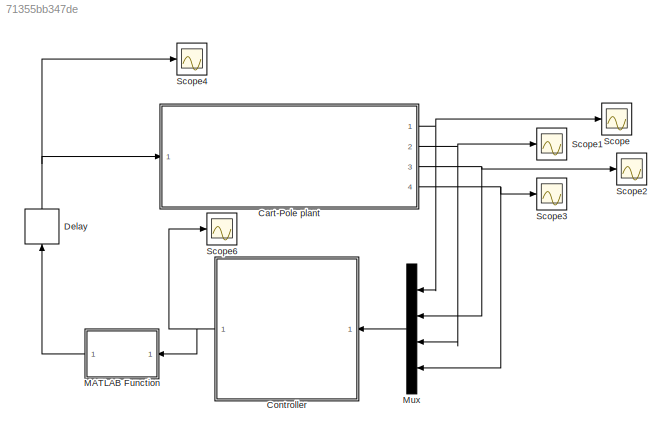
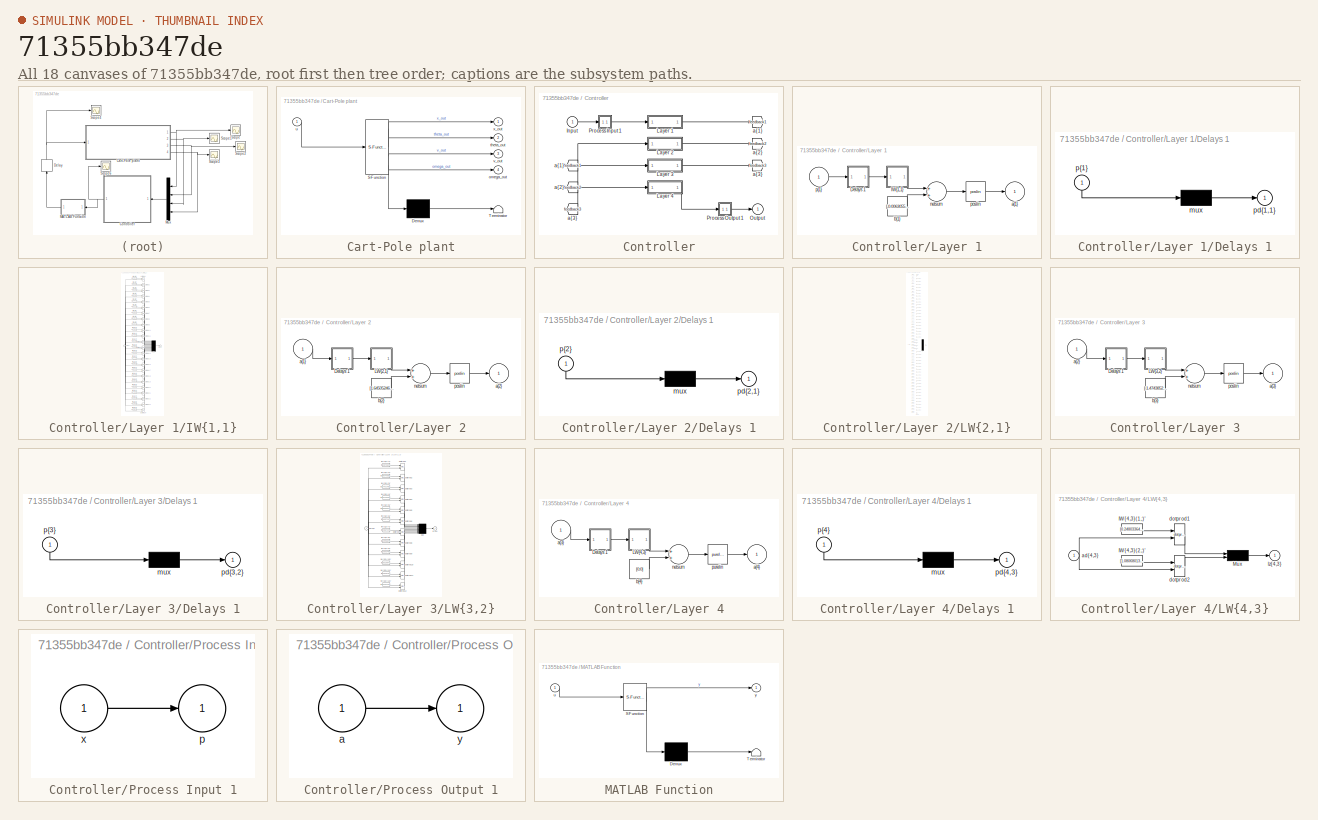
[diagram: thumbnail index - all 18 canvases of the model, root first then tree order]
MODEL slx_71355bb347de
KIND model
CONFIG AbsTol = auto
CONFIG EnableMultiTasking = off
CONFIG FixedStep = 0.005
CONFIG MaxStep = auto
CONFIG MinStep = auto
CONFIG RelTol = 1e-3
CONFIG SampleTimeConstraint = Unconstrained
CONFIG Solver = FixedStepAuto
CONFIG SolverName = FixedStepAuto
CONFIG StartTime = 0.0
CONFIG StopTime = 100
BLOCK [SubSystem] Cart-Pole plant
  ErrorFcn = Stateflow.Translate.translate
  PermitHierarchicalResolution = ExplicitOnly
  Ports = [1, 4]
  RequestExecContextInheritance = off
  SFBlockType = Chart
  TreatAsAtomicUnit = on
BLOCK [Demux] Cart-Pole plant/ Demux 
  Outputs = 1
  Ports = [1, 1]
BLOCK [S-Function] Cart-Pole plant/ SFunction 
  EnableBusSupport = on
  FunctionName = sf_sfun
  PortCounts = [1 5]
  Ports = [1, 5]
  SFcnIsStateOwnerBlock = off
  SFunctionDeploymentMode = off
  Tag = Stateflow S-Function CartPole_sim 3
BLOCK [Terminator] Cart-Pole plant/ Terminator 
BLOCK [Outport] Cart-Pole plant/omega_out
  IconDisplay = Port number
  Port = 4
BLOCK [Outport] Cart-Pole plant/theta_out
  IconDisplay = Port number
  Port = 2
BLOCK [Inport] Cart-Pole plant/u
  IconDisplay = Port number
BLOCK [Outport] Cart-Pole plant/v_out
  IconDisplay = Port number
  Port = 3
BLOCK [Outport] Cart-Pole plant/x_out
  IconDisplay = Port number
BLOCK [SubSystem] Controller
  Ports = [1, 1]
  RequestExecContextInheritance = off
BLOCK [From] Controller/ a{1} 
  GotoTag = feedback1
BLOCK [From] Controller/ a{2} 
  GotoTag = feedback2
BLOCK [From] Controller/ a{3} 
  GotoTag = feedback3
BLOCK [Inport] Controller/Input
  IconDisplay = Port number
  PortDimensions = 4
BLOCK [SubSystem] Controller/Layer 1
  Ports = [1, 1]
  RequestExecContextInheritance = off
BLOCK [SubSystem] Controller/Layer 1/Delays 1
  Ports = [1, 1]
  RequestExecContextInheritance = off
BLOCK [Mux] Controller/Layer 1/Delays 1/mux
  Inputs = 1
  Ports = [1, 1]
BLOCK [Outport] Controller/Layer 1/Delays 1/pd{1,1}
  IconDisplay = Port number
BLOCK [Inport] Controller/Layer 1/Delays 1/p{1}
  IconDisplay = Port number
  PortDimensions = 4
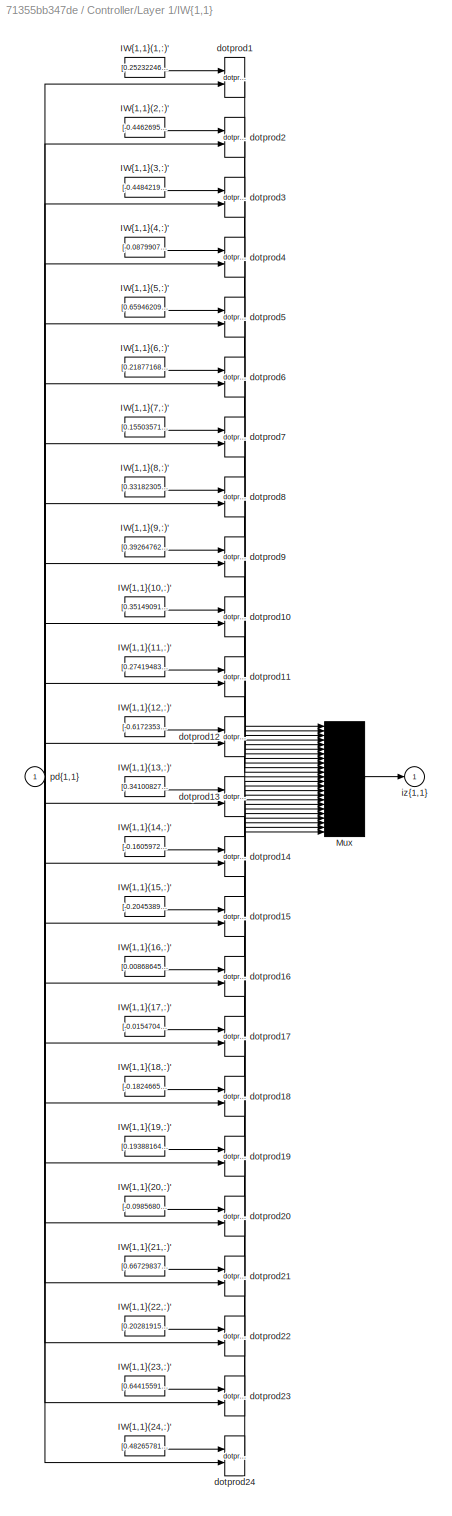
BLOCK [SubSystem] Controller/Layer 1/IW{1,1}
  Ports = [1, 1]
  RequestExecContextInheritance = off
BLOCK [Constant] Controller/Layer 1/IW{1,1}/IW{1,1}(1,:)'
  Value = [0.2523224651813507080078125;-0.2455669939517974853515625;-1.15037548542022705078125;-0.705918252468109130859375]
BLOCK [Constant] Controller/Layer 1/IW{1,1}/IW{1,1}(10,:)'
  Value = [0.351490914821624755859375;0.8357474803924560546875;0.340256214141845703125;0.19725419580936431884765625]
BLOCK [Constant] Controller/Layer 1/IW{1,1}/IW{1,1}(11,:)'
  Value = [0.27419483661651611328125;-0.052526079118251800537109375;-1.36656486988067626953125;-0.6285190582275390625]
BLOCK [Constant] Controller/Layer 1/IW{1,1}/IW{1,1}(12,:)'
  Value = [-0.61723530292510986328125;-0.3212698400020599365234375;0.26761090755462646484375;-0.3515857756137847900390625]
BLOCK [Constant] Controller/Layer 1/IW{1,1}/IW{1,1}(13,:)'
  Value = [0.3410082757472991943359375;-0.18926320970058441162109375;1.2018167972564697265625;0.780776500701904296875]
BLOCK [Constant] Controller/Layer 1/IW{1,1}/IW{1,1}(14,:)'
  Value = [-0.1605972945690155029296875;-0.0608492083847522735595703125;-0.0359160900115966796875;-0.2459491789340972900390625]
BLOCK [Constant] Controller/Layer 1/IW{1,1}/IW{1,1}(15,:)'
  Value = [-0.20453898608684539794921875;-0.17811529338359832763671875;1.15578258037567138671875;0.751191794872283935546875]
BLOCK [Constant] Controller/Layer 1/IW{1,1}/IW{1,1}(16,:)'
  Value = [0.008686455897986888885498046875;0.180945456027984619140625;0.571848213672637939453125;-0.2184321880340576171875]
BLOCK [Constant] Controller/Layer 1/IW{1,1}/IW{1,1}(17,:)'
  Value = [-0.015470481477677822113037109375;-0.29992163181304931640625;-1.33551311492919921875;-0.827671527862548828125]
BLOCK [Constant] Controller/Layer 1/IW{1,1}/IW{1,1}(18,:)'
  Value = [-0.1824665963649749755859375;0.258258640766143798828125;0.509316146373748779296875;-0.001905656419694423675537109375]
BLOCK [Constant] Controller/Layer 1/IW{1,1}/IW{1,1}(19,:)'
  Value = [0.19388164579868316650390625;0.3596037924289703369140625;0.1375104486942291259765625;-0.0292047522962093353271484375]
BLOCK [Constant] Controller/Layer 1/IW{1,1}/IW{1,1}(2,:)'
  Value = [-0.446269512176513671875;-0.004828979261219501495361328125;-1.19986617565155029296875;-0.754739820957183837890625]
BLOCK [Constant] Controller/Layer 1/IW{1,1}/IW{1,1}(20,:)'
  Value = [-0.098568022251129150390625;0.297215521335601806640625;0.852480828762054443359375;-0.008203216828405857086181640625]
BLOCK [Constant] Controller/Layer 1/IW{1,1}/IW{1,1}(21,:)'
  Value = [0.667298376560211181640625;-0.0603669099509716033935546875;-0.23827256262302398681640625;-0.0333109162747859954833984375]
BLOCK [Constant] Controller/Layer 1/IW{1,1}/IW{1,1}(22,:)'
  Value = [0.20281915366649627685546875;0.55083930492401123046875;0.263383448123931884765625;0.092487789690494537353515625]
BLOCK [Constant] Controller/Layer 1/IW{1,1}/IW{1,1}(23,:)'
  Value = [0.644155919551849365234375;0.5864951610565185546875;0.4780151546001434326171875;0.2738604247570037841796875]
BLOCK [Constant] Controller/Layer 1/IW{1,1}/IW{1,1}(24,:)'
  Value = [0.4826578199863433837890625;0.413881778717041015625;0.718039453029632568359375;-0.012315474450588226318359375]
BLOCK [Constant] Controller/Layer 1/IW{1,1}/IW{1,1}(3,:)'
  Value = [-0.4484219253063201904296875;0.2355841696262359619140625;-1.2038428783416748046875;-0.742212593555450439453125]
BLOCK [Constant] Controller/Layer 1/IW{1,1}/IW{1,1}(4,:)'
  Value = [-0.0879907906055450439453125;0.50776350498199462890625;0.43934047222137451171875;0.402527630329132080078125]
BLOCK [Constant] Controller/Layer 1/IW{1,1}/IW{1,1}(5,:)'
  Value = [0.65946209430694580078125;0.3311125338077545166015625;0.3458550274372100830078125;-0.001248417771421372890472412109375]
BLOCK [Constant] Controller/Layer 1/IW{1,1}/IW{1,1}(6,:)'
  Value = [0.21877168118953704833984375;-0.29791915416717529296875;0.1824108064174652099609375;-0.3690417110919952392578125]
BLOCK [Constant] Controller/Layer 1/IW{1,1}/IW{1,1}(7,:)'
  Value = [0.15503571927547454833984375;0.0430071838200092315673828125;0.54362523555755615234375;-0.276398181915283203125]
BLOCK [Constant] Controller/Layer 1/IW{1,1}/IW{1,1}(8,:)'
  Value = [0.331823050975799560546875;0.16822619736194610595703125;-0.0375410653650760650634765625;-0.013965948484838008880615234375]
BLOCK [Constant] Controller/Layer 1/IW{1,1}/IW{1,1}(9,:)'
  Value = [0.39264762401580810546875;0.20245896279811859130859375;0.632217228412628173828125;0.006107513792812824249267578125]
BLOCK [Mux] Controller/Layer 1/IW{1,1}/Mux
  Inputs = 24
  Ports = [24, 1]
BLOCK [Reference] Controller/Layer 1/IW{1,1}/dotprod1  REF=neural/Weight Functions/dotprod
  Ports = [2, 1]
  SourceBlock = neural/Weight Functions/dotprod
  SourceProductBaseCode = NN
  SourceProductName = Neural Network Toolbox
  SourceType = DOTPROD
BLOCK [Reference] Controller/Layer 1/IW{1,1}/dotprod10  REF=neural/Weight Functions/dotprod
  Ports = [2, 1]
  SourceBlock = neural/Weight Functions/dotprod
  SourceProductBaseCode = NN
  SourceProductName = Neural Network Toolbox
  SourceType = DOTPROD
BLOCK [Reference] Controller/Layer 1/IW{1,1}/dotprod11  REF=neural/Weight Functions/dotprod
  Ports = [2, 1]
  SourceBlock = neural/Weight Functions/dotprod
  SourceProductBaseCode = NN
  SourceProductName = Neural Network Toolbox
  SourceType = DOTPROD
BLOCK [Reference] Controller/Layer 1/IW{1,1}/dotprod12  REF=neural/Weight Functions/dotprod
  Ports = [2, 1]
  SourceBlock = neural/Weight Functions/dotprod
  SourceProductBaseCode = NN
  SourceProductName = Neural Network Toolbox
  SourceType = DOTPROD
BLOCK [Reference] Controller/Layer 1/IW{1,1}/dotprod13  REF=neural/Weight Functions/dotprod
  Ports = [2, 1]
  SourceBlock = neural/Weight Functions/dotprod
  SourceProductBaseCode = NN
  SourceProductName = Neural Network Toolbox
  SourceType = DOTPROD
BLOCK [Reference] Controller/Layer 1/IW{1,1}/dotprod14  REF=neural/Weight Functions/dotprod
  Ports = [2, 1]
  SourceBlock = neural/Weight Functions/dotprod
  SourceProductBaseCode = NN
  SourceProductName = Neural Network Toolbox
  SourceType = DOTPROD
BLOCK [Reference] Controller/Layer 1/IW{1,1}/dotprod15  REF=neural/Weight Functions/dotprod
  Ports = [2, 1]
  SourceBlock = neural/Weight Functions/dotprod
  SourceProductBaseCode = NN
  SourceProductName = Neural Network Toolbox
  SourceType = DOTPROD
BLOCK [Reference] Controller/Layer 1/IW{1,1}/dotprod16  REF=neural/Weight Functions/dotprod
  Ports = [2, 1]
  SourceBlock = neural/Weight Functions/dotprod
  SourceProductBaseCode = NN
  SourceProductName = Neural Network Toolbox
  SourceType = DOTPROD
BLOCK [Reference] Controller/Layer 1/IW{1,1}/dotprod17  REF=neural/Weight Functions/dotprod
  Ports = [2, 1]
  SourceBlock = neural/Weight Functions/dotprod
  SourceProductBaseCode = NN
  SourceProductName = Neural Network Toolbox
  SourceType = DOTPROD
BLOCK [Reference] Controller/Layer 1/IW{1,1}/dotprod18  REF=neural/Weight Functions/dotprod
  Ports = [2, 1]
  SourceBlock = neural/Weight Functions/dotprod
  SourceProductBaseCode = NN
  SourceProductName = Neural Network Toolbox
  SourceType = DOTPROD
BLOCK [Reference] Controller/Layer 1/IW{1,1}/dotprod19  REF=neural/Weight Functions/dotprod
  Ports = [2, 1]
  SourceBlock = neural/Weight Functions/dotprod
  SourceProductBaseCode = NN
  SourceProductName = Neural Network Toolbox
  SourceType = DOTPROD
BLOCK [Reference] Controller/Layer 1/IW{1,1}/dotprod2  REF=neural/Weight Functions/dotprod
  Ports = [2, 1]
  SourceBlock = neural/Weight Functions/dotprod
  SourceProductBaseCode = NN
  SourceProductName = Neural Network Toolbox
  SourceType = DOTPROD
BLOCK [Reference] Controller/Layer 1/IW{1,1}/dotprod20  REF=neural/Weight Functions/dotprod
  Ports = [2, 1]
  SourceBlock = neural/Weight Functions/dotprod
  SourceProductBaseCode = NN
  SourceProductName = Neural Network Toolbox
  SourceType = DOTPROD
BLOCK [Reference] Controller/Layer 1/IW{1,1}/dotprod21  REF=neural/Weight Functions/dotprod
  Ports = [2, 1]
  SourceBlock = neural/Weight Functions/dotprod
  SourceProductBaseCode = NN
  SourceProductName = Neural Network Toolbox
  SourceType = DOTPROD
BLOCK [Reference] Controller/Layer 1/IW{1,1}/dotprod22  REF=neural/Weight Functions/dotprod
  Ports = [2, 1]
  SourceBlock = neural/Weight Functions/dotprod
  SourceProductBaseCode = NN
  SourceProductName = Neural Network Toolbox
  SourceType = DOTPROD
BLOCK [Reference] Controller/Layer 1/IW{1,1}/dotprod23  REF=neural/Weight Functions/dotprod
  Ports = [2, 1]
  SourceBlock = neural/Weight Functions/dotprod
  SourceProductBaseCode = NN
  SourceProductName = Neural Network Toolbox
  SourceType = DOTPROD
BLOCK [Reference] Controller/Layer 1/IW{1,1}/dotprod24  REF=neural/Weight Functions/dotprod
  Ports = [2, 1]
  SourceBlock = neural/Weight Functions/dotprod
  SourceProductBaseCode = NN
  SourceProductName = Neural Network Toolbox
  SourceType = DOTPROD
BLOCK [Reference] Controller/Layer 1/IW{1,1}/dotprod3  REF=neural/Weight Functions/dotprod
  Ports = [2, 1]
  SourceBlock = neural/Weight Functions/dotprod
  SourceProductBaseCode = NN
  SourceProductName = Neural Network Toolbox
  SourceType = DOTPROD
BLOCK [Reference] Controller/Layer 1/IW{1,1}/dotprod4  REF=neural/Weight Functions/dotprod
  Ports = [2, 1]
  SourceBlock = neural/Weight Functions/dotprod
  SourceProductBaseCode = NN
  SourceProductName = Neural Network Toolbox
  SourceType = DOTPROD
BLOCK [Reference] Controller/Layer 1/IW{1,1}/dotprod5  REF=neural/Weight Functions/dotprod
  Ports = [2, 1]
  SourceBlock = neural/Weight Functions/dotprod
  SourceProductBaseCode = NN
  SourceProductName = Neural Network Toolbox
  SourceType = DOTPROD
BLOCK [Reference] Controller/Layer 1/IW{1,1}/dotprod6  REF=neural/Weight Functions/dotprod
  Ports = [2, 1]
  SourceBlock = neural/Weight Functions/dotprod
  SourceProductBaseCode = NN
  SourceProductName = Neural Network Toolbox
  SourceType = DOTPROD
BLOCK [Reference] Controller/Layer 1/IW{1,1}/dotprod7  REF=neural/Weight Functions/dotprod
  Ports = [2, 1]
  SourceBlock = neural/Weight Functions/dotprod
  SourceProductBaseCode = NN
  SourceProductName = Neural Network Toolbox
  SourceType = DOTPROD
BLOCK [Reference] Controller/Layer 1/IW{1,1}/dotprod8  REF=neural/Weight Functions/dotprod
  Ports = [2, 1]
  SourceBlock = neural/Weight Functions/dotprod
  SourceProductBaseCode = NN
  SourceProductName = Neural Network Toolbox
  SourceType = DOTPROD
BLOCK [Reference] Controller/Layer 1/IW{1,1}/dotprod9  REF=neural/Weight Functions/dotprod
  Ports = [2, 1]
  SourceBlock = neural/Weight Functions/dotprod
  SourceProductBaseCode = NN
  SourceProductName = Neural Network Toolbox
  SourceType = DOTPROD
BLOCK [Outport] Controller/Layer 1/IW{1,1}/iz{1,1}
  IconDisplay = Port number
BLOCK [Inport] Controller/Layer 1/IW{1,1}/pd{1,1}
  IconDisplay = Port number
  PortDimensions = 4
BLOCK [Outport] Controller/Layer 1/a{1}
  IconDisplay = Port number
  InitialOutput = [0;0;0;0;0;0;0;0;0;0;0;0;0;0;0;0;0;0;0;0;0;0;0;0]
BLOCK [Constant] Controller/Layer 1/b{1}
  Value = [-0.006305568851530551910400390625;0.19766716659069061279296875;-0.17124159634113311767578125;0.520946085453033447265625;0.50220966339111328125;0.605747520923614501953125;0.823161303997039794921875;0.8142926692962646484375;0.621064603328704833984375;0.498081862926483154296875;0.12814629077911376953125;0.707322597503662109375;0.15585340559482574462890625;0.786443412303924560546875;-0.41809532046318...<+253ch>
BLOCK [Sum] Controller/Layer 1/netsum
  Inputs = 2
  Ports = [2, 1]
BLOCK [Reference] Controller/Layer 1/poslin  REF=neural/Transfer Functions/poslin
  Ports = [1, 1]
  SourceBlock = neural/Transfer Functions/poslin
  SourceProductBaseCode = NN
  SourceProductName = Neural Network Toolbox
  SourceType = POSLIN
BLOCK [Inport] Controller/Layer 1/p{1}
  IconDisplay = Port number
  PortDimensions = 4
BLOCK [SubSystem] Controller/Layer 2
  Ports = [1, 1]
  RequestExecContextInheritance = off
BLOCK [SubSystem] Controller/Layer 2/Delays 1
  Ports = [1, 1]
  RequestExecContextInheritance = off
BLOCK [Mux] Controller/Layer 2/Delays 1/mux
  Inputs = 1
  Ports = [1, 1]
BLOCK [Outport] Controller/Layer 2/Delays 1/pd{2,1}
  IconDisplay = Port number
BLOCK [Inport] Controller/Layer 2/Delays 1/p{2}
  IconDisplay = Port number
  PortDimensions = 24
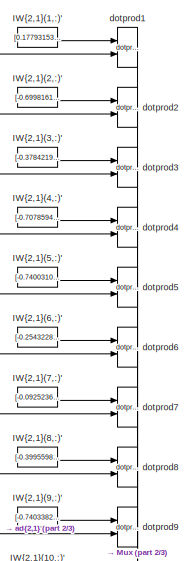
[diagram: Controller/Layer 2/LW{2,1} - part 1/3, top center region]
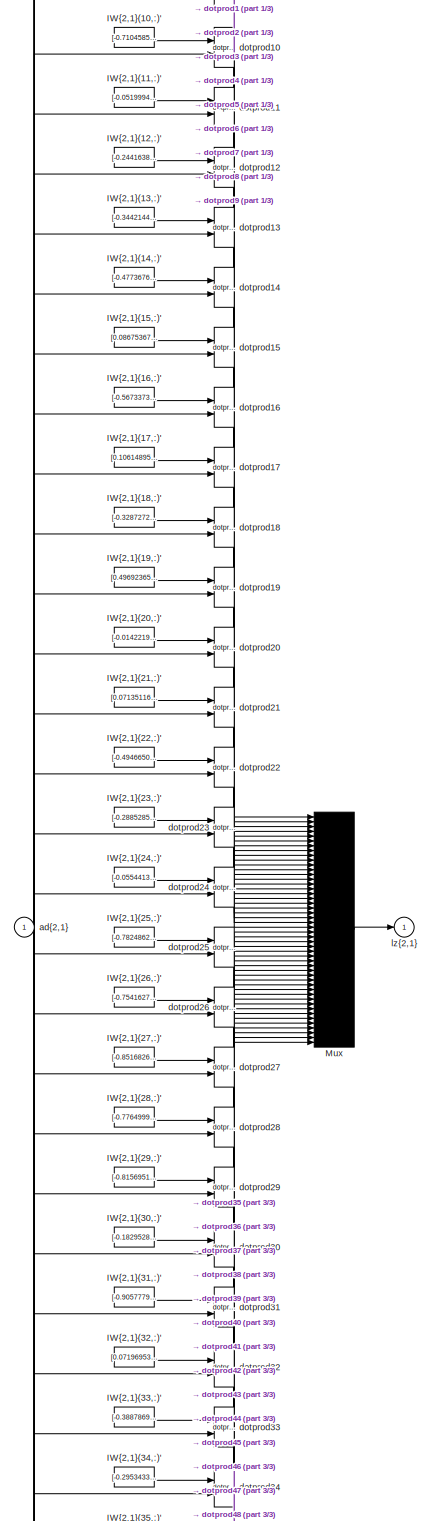
[diagram: Controller/Layer 2/LW{2,1} - part 2/3, full width, middle band]
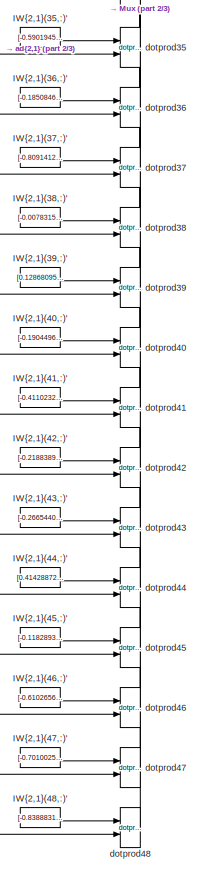
[diagram: Controller/Layer 2/LW{2,1} - part 3/3, bottom center region]
BLOCK [SubSystem] Controller/Layer 2/LW{2,1}
  Ports = [1, 1]
  RequestExecContextInheritance = off
BLOCK [Constant] Controller/Layer 2/LW{2,1}/IW{2,1}(1,:)'
  Value = [0.17793153226375579833984375;0.1859981119632720947265625;-0.16986320912837982177734375;0.11441658437252044677734375;-0.04545845091342926025390625;-0.067898832261562347412109375;-0.112249962985515594482421875;-0.341665923595428466796875;-0.16411559283733367919921875;-0.24434326589107513427734375;0.08263753354549407958984375;-0.1408951580524444580078125;-0.2918171584606170654296875;0.15678936243057...<+293ch>
BLOCK [Constant] Controller/Layer 2/LW{2,1}/IW{2,1}(10,:)'
  Value = [-0.710458576679229736328125;-0.51606476306915283203125;-0.24017746746540069580078125;0.24310727417469024658203125;0.2478575408458709716796875;0.37399876117706298828125;0.3521610796451568603515625;0.4022037088871002197265625;0.083052955567836761474609375;0.4132991731166839599609375;-0.572883307933807373046875;0.55121552944183349609375;-0.120738543570041656494140625;-0.01365948747843503952026367187...<+286ch>
BLOCK [Constant] Controller/Layer 2/LW{2,1}/IW{2,1}(11,:)'
  Value = [-0.05199946463108062744140625;-0.0074102594517171382904052734375;-0.13615505397319793701171875;-0.0498603768646717071533203125;-0.0047139967791736125946044921875;-0.2507493793964385986328125;-0.14031536877155303955078125;-0.34981060028076171875;-0.12768028676509857177734375;-0.1695293486118316650390625;0.180331647396087646484375;-0.108905605971813201904296875;-0.2546574175357818603515625;-0.35492...<+305ch>
BLOCK [Constant] Controller/Layer 2/LW{2,1}/IW{2,1}(12,:)'
  Value = [-0.2441638410091400146484375;-0.534206807613372802734375;-0.25519597530364990234375;0.28065204620361328125;0.013112788088619709014892578125;-0.0191885568201541900634765625;-0.23926918208599090576171875;0.14096046984195709228515625;0.12704183161258697509765625;-0.0486580766737461090087890625;-0.79332458972930908203125;-0.290355741977691650390625;0.84680163860321044921875;-0.11355908960103988647460...<+290ch>
BLOCK [Constant] Controller/Layer 2/LW{2,1}/IW{2,1}(13,:)'
  Value = [-0.3442144095897674560546875;-0.3063831031322479248046875;-0.435578048229217529296875;0.351960361003875732421875;0.4898283779621124267578125;0.0536787472665309906005859375;0.026038058102130889892578125;0.46964848041534423828125;0.546927750110626220703125;0.123293302953243255615234375;-0.8183076381683349609375;0.117013908922672271728515625;0.3012053668498992919921875;0.48795664310455322265625;-0.1...<+274ch>
BLOCK [Constant] Controller/Layer 2/LW{2,1}/IW{2,1}(14,:)'
  Value = [-0.4773676693439483642578125;-0.5281963348388671875;-0.317266941070556640625;0.3825215399265289306640625;0.2178967297077178955078125;0.2848933041095733642578125;0.081640653312206268310546875;0.2920596599578857421875;0.4389199316501617431640625;0.49662685394287109375;-0.465090930461883544921875;0.558321416378021240234375;0.2759543955326080322265625;0.2689083516597747802734375;-0.081950083374977111...<+256ch>
BLOCK [Constant] Controller/Layer 2/LW{2,1}/IW{2,1}(15,:)'
  Value = [0.086753673851490020751953125;-0.3554206192493438720703125;0.18437357246875762939453125;-0.118689693510532379150390625;-0.319101870059967041015625;0.041379310190677642822265625;0.1014156043529510498046875;0.1006038486957550048828125;0.027447767555713653564453125;0.02805717289447784423828125;-0.13532702624797821044921875;-0.096639819443225860595703125;-0.01881659217178821563720703125;-0.0357158929...<+301ch>
BLOCK [Constant] Controller/Layer 2/LW{2,1}/IW{2,1}(16,:)'
  Value = [-0.567337334156036376953125;-0.4865228831768035888671875;-0.372261226177215576171875;0.012855686247348785400390625;0.3839932978153228759765625;0.43558824062347412109375;0.306111633777618408203125;0.37232720851898193359375;0.3490060269832611083984375;0.2784020900726318359375;-0.3075011074542999267578125;0.55950438976287841796875;0.01533712446689605712890625;0.3223581016063690185546875;-0.533348202...<+269ch>
BLOCK [Constant] Controller/Layer 2/LW{2,1}/IW{2,1}(17,:)'
  Value = [0.1061489582061767578125;-0.13188399374485015869140625;-0.06996236741542816162109375;-0.0052545894868671894073486328125;0.0359315909445285797119140625;-0.2982311546802520751953125;-0.0222048461437225341796875;0.115581728518009185791015625;-0.1622667014598846435546875;-0.103462301194667816162109375;-0.130967676639556884765625;-0.035495914518833160400390625;0.040302909910678863525390625;-0.25582724...<+310ch>
BLOCK [Constant] Controller/Layer 2/LW{2,1}/IW{2,1}(18,:)'
  Value = [-0.328727245330810546875;-0.1750428378582000732421875;-0.2549169361591339111328125;-0.20407140254974365234375;-0.1901338100433349609375;-0.2954456508159637451171875;0.08257795870304107666015625;-0.09880621731281280517578125;0.032512955367565155029296875;-0.1817125380039215087890625;-0.3162063658237457275390625;0.250665843486785888671875;0.20807777345180511474609375;0.062180496752262115478515625;-...<+277ch>
BLOCK [Constant] Controller/Layer 2/LW{2,1}/IW{2,1}(19,:)'
  Value = [0.4969236552715301513671875;0.377073466777801513671875;0.3897948563098907470703125;-0.18428300321102142333984375;0.3357975482940673828125;0.547106444835662841796875;0.1151540279388427734375;-0.0134592391550540924072265625;0.323673784732818603515625;0.307825505733489990234375;0.5938594341278076171875;0.223348796367645263671875;-0.883578717708587646484375;0.14210702478885650634765625;-0.67827171087...<+264ch>
BLOCK [Constant] Controller/Layer 2/LW{2,1}/IW{2,1}(2,:)'
  Value = [-0.699816167354583740234375;-0.304755151271820068359375;-0.62496662139892578125;0.012582975439727306365966796875;0.09891371428966522216796875;0.16738523542881011962890625;0.08365833759307861328125;0.74265956878662109375;0.537080228328704833984375;0.45570719242095947265625;-0.374847114086151123046875;0.268102347850799560546875;0.3807389438152313232421875;0.090760149061679840087890625;-0.1231507807...<+262ch>
BLOCK [Constant] Controller/Layer 2/LW{2,1}/IW{2,1}(20,:)'
  Value = [-0.0142219476401805877685546875;0.19944952428340911865234375;-0.2455310821533203125;0.09694765508174896240234375;-0.084818713366985321044921875;-0.32041394710540771484375;-0.050527207553386688232421875;-0.079600967466831207275390625;0.1227783262729644775390625;-0.32013428211212158203125;0.1808612346649169921875;-0.00329609215259552001953125;-0.0418489277362823486328125;-0.122985653579235076904296...<+297ch>
BLOCK [Constant] Controller/Layer 2/LW{2,1}/IW{2,1}(21,:)'
  Value = [0.071351163089275360107421875;-0.0233952663838863372802734375;0.050514347851276397705078125;0.12357433140277862548828125;0.49145591259002685546875;0.08154006302356719970703125;0.3028536140918731689453125;0.3699093759059906005859375;0.432185590267181396484375;0.620882332324981689453125;0.16493536531925201416015625;0.102503068745136260986328125;-0.653860569000244140625;-0.08798845112323760986328125...<+273ch>
BLOCK [Constant] Controller/Layer 2/LW{2,1}/IW{2,1}(22,:)'
  Value = [-0.49466502666473388671875;-0.3578336238861083984375;-0.640775263309478759765625;0.35668885707855224609375;0.4616524279117584228515625;0.651324689388275146484375;0.5524551868438720703125;0.449014127254486083984375;0.2982086241245269775390625;0.5991497039794921875;-0.18493683636188507080078125;0.45440757274627685546875;-0.44563400745391845703125;0.4219952523708343505859375;-0.646270334720611572265...<+251ch>
BLOCK [Constant] Controller/Layer 2/LW{2,1}/IW{2,1}(23,:)'
  Value = [-0.2885285913944244384765625;0.0456117205321788787841796875;0.08058695495128631591796875;-0.11409962177276611328125;-0.1517885625362396240234375;-0.2695195674896240234375;-0.101472027599811553955078125;-0.12776182591915130615234375;-0.3220218718051910400390625;-0.0353408753871917724609375;0.171303570270538330078125;-0.2337251007556915283203125;-0.195362746715545654296875;-0.0844499617815017700195...<+300ch>
BLOCK [Constant] Controller/Layer 2/LW{2,1}/IW{2,1}(24,:)'
  Value = [-0.05544133484363555908203125;0.19086210429668426513671875;-0.21319054067134857177734375;-0.0396954230964183807373046875;-0.2506825625896453857421875;0.085753403604030609130859375;-0.17402084171772003173828125;-0.3382426798343658447265625;0.03100853599607944488525390625;-0.1229555904865264892578125;0.2204514443874359130859375;-0.03097800724208354949951171875;-0.210751712322235107421875;-0.2885929...<+304ch>
BLOCK [Constant] Controller/Layer 2/LW{2,1}/IW{2,1}(25,:)'
  Value = [-0.7824862003326416015625;-0.762660205364227294921875;-0.3202356398105621337890625;0.260756671428680419921875;0.06568430364131927490234375;-0.10139344632625579833984375;0.4724462032318115234375;0.716887295246124267578125;0.627246677875518798828125;0.11465428769588470458984375;-0.776716411113739013671875;0.83774769306182861328125;0.301717579364776611328125;0.370977103710174560546875;-0.11301562190...<+261ch>
BLOCK [Constant] Controller/Layer 2/LW{2,1}/IW{2,1}(26,:)'
  Value = [-0.75416278839111328125;-0.4574575722217559814453125;-0.3717026412487030029296875;0.352133095264434814453125;0.3096629083156585693359375;0.3145613968372344970703125;0.1376111805438995361328125;0.8100349903106689453125;0.4664069712162017822265625;0.58094203472137451171875;-0.789631783962249755859375;0.2820880711078643798828125;0.1355705559253692626953125;0.3244953155517578125;-0.718327999114990234...<+245ch>
BLOCK [Constant] Controller/Layer 2/LW{2,1}/IW{2,1}(27,:)'
  Value = [-0.8516826629638671875;-0.427007734775543212890625;-0.2225160896778106689453125;0.53292000293731689453125;0.500030696392059326171875;0.394746720790863037109375;0.2304557263851165771484375;0.724495947360992431640625;0.33976459503173828125;0.17679798603057861328125;-0.848969876766204833984375;0.706096649169921875;0.2772282063961029052734375;0.4392965734004974365234375;-0.17888151109218597412109375;...<+251ch>
BLOCK [Constant] Controller/Layer 2/LW{2,1}/IW{2,1}(28,:)'
  Value = [-0.7764999866485595703125;-0.67775785923004150390625;-0.4860544502735137939453125;0.313144028186798095703125;-0.0401921309530735015869140625;0.0490759201347827911376953125;0.32481288909912109375;0.810429096221923828125;0.182169735431671142578125;0.3298179209232330322265625;-0.21139395236968994140625;0.938483774662017822265625;0.251507580280303955078125;0.095373176038265228271484375;-0.25697800517...<+260ch>
BLOCK [Constant] Controller/Layer 2/LW{2,1}/IW{2,1}(29,:)'
  Value = [-0.815695106983184814453125;-0.6656951904296875;-0.4079103171825408935546875;-0.092012308537960052490234375;0.122994460165500640869140625;0.4066071808338165283203125;0.43906724452972412109375;0.460169136524200439453125;0.61315667629241943359375;0.21161030232906341552734375;-0.252696812152862548828125;0.623187959194183349609375;-0.1737352311611175537109375;0.525435924530029296875;-0.34855279326438...<+266ch>
BLOCK [Constant] Controller/Layer 2/LW{2,1}/IW{2,1}(3,:)'
  Value = [-0.3784219324588775634765625;-0.5965664386749267578125;-0.5306632518768310546875;0.45192539691925048828125;0.102118551731109619140625;0.18486364185810089111328125;0.314795434474945068359375;0.695565164089202880859375;0.544650375843048095703125;0.1649835407733917236328125;-0.530354321002960205078125;0.4569404125213623046875;-0.3019047081470489501953125;0.578985035419464111328125;-0.733995437622070...<+248ch>
BLOCK [Constant] Controller/Layer 2/LW{2,1}/IW{2,1}(30,:)'
  Value = [-0.18295280635356903076171875;-0.014506093226373195648193359375;0.16150416433811187744140625;0.0392224304378032684326171875;-0.028352953493595123291015625;0.088484339416027069091796875;0.095366127789020538330078125;-0.540663778781890869140625;-0.332727849483489990234375;-0.1449998319149017333984375;-0.28250253200531005859375;0.010000458918511867523193359375;-0.258268654346466064453125;0.171311199...<+310ch>
BLOCK [Constant] Controller/Layer 2/LW{2,1}/IW{2,1}(31,:)'
  Value = [-0.90577793121337890625;-0.21274244785308837890625;-0.4213474690914154052734375;0.4020542800426483154296875;0.012686274945735931396484375;0.02860621549189090728759765625;0.22801353037357330322265625;0.806634962558746337890625;0.3896043300628662109375;0.43629467487335205078125;-0.2882480919361114501953125;0.50724589824676513671875;-0.0544578246772289276123046875;-0.0411071814596652984619140625;-0....<+279ch>
BLOCK [Constant] Controller/Layer 2/LW{2,1}/IW{2,1}(32,:)'
  Value = [0.0719695389270782470703125;-0.2692568302154541015625;-0.2055515348911285400390625;-0.05406133830547332763671875;-0.186585009098052978515625;0.026075698435306549072265625;-0.14391319453716278076171875;-0.228863894939422607421875;-0.1334994733333587646484375;0.0098906457424163818359375;0.260272562503814697265625;-0.010358582250773906707763671875;-0.083620168268680572509765625;-0.271932244300842285...<+295ch>
BLOCK [Constant] Controller/Layer 2/LW{2,1}/IW{2,1}(33,:)'
  Value = [-0.388786971569061279296875;-0.35546052455902099609375;-0.43611907958984375;-0.01256388612091541290283203125;0.1878435611724853515625;0.19481004774570465087890625;0.50396120548248291015625;0.82435262203216552734375;0.72550141811370849609375;0.3825270235538482666015625;-0.705960750579833984375;0.474250614643096923828125;0.087131559848785400390625;0.18828582763671875;-0.608134746551513671875;0.0588...<+245ch>
BLOCK [Constant] Controller/Layer 2/LW{2,1}/IW{2,1}(34,:)'
  Value = [-0.2953433096408843994140625;-0.17785771191120147705078125;-0.12988181412220001220703125;-0.1368286907672882080078125;-0.1993477344512939453125;-0.43382823467254638671875;0.20963068306446075439453125;-0.0398442409932613372802734375;0.14647640287876129150390625;-0.07845781743526458740234375;-0.13435743749141693115234375;-0.3415205180644989013671875;-0.158900737762451171875;-0.311356812715530395507...<+301ch>
BLOCK [Constant] Controller/Layer 2/LW{2,1}/IW{2,1}(35,:)'
  Value = [-0.59019458293914794921875;-0.24424648284912109375;-0.4445934593677520751953125;0.02444022335112094879150390625;0.353852450847625732421875;0.38400089740753173828125;0.4090383350849151611328125;0.67325198650360107421875;0.2631628215312957763671875;0.24836464226245880126953125;-0.3069866001605987548828125;0.770452201366424560546875;-0.1135711371898651123046875;0.23463539779186248779296875;-0.683380...<+271ch>
BLOCK [Constant] Controller/Layer 2/LW{2,1}/IW{2,1}(36,:)'
  Value = [-0.1850846707820892333984375;0.24427890777587890625;-0.2822982370853424072265625;0.155870616436004638671875;0.23231695592403411865234375;-0.2403285801410675048828125;0.127914905548095703125;-0.2688840329647064208984375;-0.2810218334197998046875;0.21805451810359954833984375;0.2099927961826324462890625;0.101306617259979248046875;-0.315727710723876953125;-0.2669966518878936767578125;-0.1926289051771...<+277ch>
BLOCK [Constant] Controller/Layer 2/LW{2,1}/IW{2,1}(37,:)'
  Value = [-0.809141218662261962890625;-0.4515561759471893310546875;-0.238031923770904541015625;-0.0208199508488178253173828125;0.2652436792850494384765625;0.468775331974029541015625;0.5720064640045166015625;0.73447382450103759765625;0.20574875175952911376953125;0.5845296382904052734375;-0.761496365070343017578125;0.2693610489368438720703125;0.124245934188365936279296875;0.033890835940837860107421875;-0.569...<+279ch>
BLOCK [Constant] Controller/Layer 2/LW{2,1}/IW{2,1}(38,:)'
  Value = [-0.007831565104424953460693359375;-0.2518997490406036376953125;-0.147224843502044677734375;-0.143978774547576904296875;-0.2266190946102142333984375;-0.1116239130496978759765625;-0.172372996807098388671875;0.02530839480459690093994140625;0.079896628856658935546875;-0.2882871925830841064453125;0.147664546966552734375;0.1442959308624267578125;0.010530985891819000244140625;0.0560384504497051239013671...<+302ch>
BLOCK [Constant] Controller/Layer 2/LW{2,1}/IW{2,1}(39,:)'
  Value = [0.12868095934391021728515625;-0.024378955364227294921875;-0.15059103071689605712890625;-0.07769589126110076904296875;0.16270291805267333984375;-0.3401496112346649169921875;-0.1665331423282623291015625;-0.283618032932281494140625;-0.11591039597988128662109375;-0.06038530170917510986328125;0.19023668766021728515625;-0.109066225588321685791015625;0.145991027355194091796875;0.215700313448905944824218...<+293ch>
BLOCK [Constant] Controller/Layer 2/LW{2,1}/IW{2,1}(4,:)'
  Value = [-0.707859456539154052734375;-0.42662966251373291015625;-0.734446346759796142578125;0.3580484092235565185546875;0.4548673927783966064453125;0.293806970119476318359375;0.3594669401645660400390625;0.603054702281951904296875;0.46582973003387451171875;0.3293344676494598388671875;-0.581713616847991943359375;0.7743041515350341796875;-0.262501239776611328125;0.23336036503314971923828125;-0.56510221958160...<+248ch>
BLOCK [Constant] Controller/Layer 2/LW{2,1}/IW{2,1}(40,:)'
  Value = [-0.19044969975948333740234375;-0.0272395648062229156494140625;-0.1454158127307891845703125;0.24430833756923675537109375;0.156912326812744140625;0.34221470355987548828125;0.457990467548370361328125;0.591239035129547119140625;0.55330312252044677734375;0.5395710468292236328125;-0.646444618701934814453125;0.14815938472747802734375;-0.100392632186412811279296875;0.309693634510040283203125;-0.754016101...<+260ch>
BLOCK [Constant] Controller/Layer 2/LW{2,1}/IW{2,1}(41,:)'
  Value = [-0.4110232293605804443359375;-0.4756778776645660400390625;-0.0809166133403778076171875;0.2871935069561004638671875;0.096135087311267852783203125;0.469306528568267822265625;0.53078401088714599609375;0.600792467594146728515625;0.29913866519927978515625;0.598328292369842529296875;-0.392094790935516357421875;0.36349189281463623046875;-0.547707021236419677734375;0.544406712055206298828125;-0.643134534...<+265ch>
BLOCK [Constant] Controller/Layer 2/LW{2,1}/IW{2,1}(42,:)'
  Value = [-0.2188389599323272705078125;-0.143036901950836181640625;0.10278786718845367431640625;0.17211927473545074462890625;0.3058332502841949462890625;0.07237188518047332763671875;0.4472315609455108642578125;0.40674793720245361328125;0.3601668775081634521484375;0.263514459133148193359375;0.4000033438205718994140625;0.1717062294483184814453125;-0.80006229877471923828125;0.193499982357025146484375;-0.46877...<+272ch>
BLOCK [Constant] Controller/Layer 2/LW{2,1}/IW{2,1}(43,:)'
  Value = [-0.266544044017791748046875;-0.4782862365245819091796875;-0.623700797557830810546875;0.08734200894832611083984375;0.4433306157588958740234375;0.56013524532318115234375;0.14435660839080810546875;0.600306570529937744140625;0.556448042392730712890625;0.585908591747283935546875;-0.685024797916412353515625;0.73504531383514404296875;-0.2595912516117095947265625;0.3117759227752685546875;-0.6030774116516...<+259ch>
BLOCK [Constant] Controller/Layer 2/LW{2,1}/IW{2,1}(44,:)'
  Value = [0.4142887294292449951171875;0.84023761749267578125;0.707501590251922607421875;-0.84387910366058349609375;-0.0513928718864917755126953125;0.8159015178680419921875;0.42360341548919677734375;0.218518733978271484375;0.304805099964141845703125;0.0084682293236255645751953125;0.805043756961822509765625;0.49487102031707763671875;-1.3436424732208251953125;0.209774076938629150390625;-0.87109655141830444335...<+255ch>
BLOCK [Constant] Controller/Layer 2/LW{2,1}/IW{2,1}(45,:)'
  Value = [-0.11828936636447906494140625;-0.1788069903850555419921875;-0.1941458880901336669921875;0.0304241180419921875;0.234078228473663330078125;-0.0288495458662509918212890625;0.07268512248992919921875;-0.21596209704875946044921875;0.16165496408939361572265625;-0.2679410278797149658203125;-0.1169949471950531005859375;-0.07846750319004058837890625;-0.02846086025238037109375;-0.0562622249126434326171875;0...<+304ch>
BLOCK [Constant] Controller/Layer 2/LW{2,1}/IW{2,1}(46,:)'
  Value = [-0.610265672206878662109375;-0.081586591899394989013671875;-0.075711548328399658203125;0.18810336291790008544921875;0.4295586049556732177734375;0.506115972995758056640625;0.630911052227020263671875;0.80567395687103271484375;0.2533476352691650390625;0.586625874042510986328125;-0.198145210742950439453125;0.564401805400848388671875;-0.3167537748813629150390625;0.5311810970306396484375;-0.81939023733...<+265ch>
BLOCK [Constant] Controller/Layer 2/LW{2,1}/IW{2,1}(47,:)'
  Value = [-0.701002538204193115234375;-0.298417508602142333984375;-0.18203313648700714111328125;0.4227496087551116943359375;0.4462442696094512939453125;0.3998894989490509033203125;0.3529835045337677001953125;0.780486881732940673828125;0.3077740371227264404296875;0.103037424385547637939453125;-0.5464565753936767578125;0.44412147998809814453125;-0.091501615941524505615234375;0.5148894786834716796875;-0.57325...<+274ch>
BLOCK [Constant] Controller/Layer 2/LW{2,1}/IW{2,1}(48,:)'
  Value = [-0.8388831615447998046875;-0.288262784481048583984375;-0.573014914989471435546875;0.3156838715076446533203125;0.349437654018402099609375;0.4664645493030548095703125;0.2849998772144317626953125;0.73421180248260498046875;0.21163259446620941162109375;0.49661099910736083984375;-0.6054365634918212890625;0.566176474094390869140625;0.17741252481937408447265625;0.2906045019626617431640625;-0.717969119548...<+263ch>
BLOCK [Constant] Controller/Layer 2/LW{2,1}/IW{2,1}(5,:)'
  Value = [-0.7400310039520263671875;-0.18717034161090850830078125;-0.100429795682430267333984375;0.10178597271442413330078125;0.4772726595401763916015625;0.3886838853359222412109375;0.22059355676174163818359375;0.610442936420440673828125;0.23544858396053314208984375;0.098481602966785430908203125;-0.4086585938930511474609375;0.51782262325286865234375;-0.2222860157489776611328125;0.2018848359584808349609375;...<+278ch>
BLOCK [Constant] Controller/Layer 2/LW{2,1}/IW{2,1}(6,:)'
  Value = [-0.25432288646697998046875;0.072532117366790771484375;0.065233170986175537109375;-0.1344544887542724609375;0.19808225333690643310546875;-0.1784601509571075439453125;-0.19083917140960693359375;-0.02208383195102214813232421875;0.02879290096461772918701171875;-0.29115355014801025390625;-0.2754828631877899169921875;-0.2615462839603424072265625;-0.0345797836780548095703125;-0.1454823017120361328125;0....<+279ch>
BLOCK [Constant] Controller/Layer 2/LW{2,1}/IW{2,1}(7,:)'
  Value = [-0.092523671686649322509765625;-0.02279414422810077667236328125;-0.10801477730274200439453125;-0.06021799147129058837890625;0.14423586428165435791015625;-0.075210623443126678466796875;0.138356864452362060546875;-0.330703079700469970703125;-0.383846580982208251953125;-0.17789615690708160400390625;-0.02877330221235752105712890625;-0.12979863584041595458984375;-0.12715874612331390380859375;-0.182596...<+307ch>
BLOCK [Constant] Controller/Layer 2/LW{2,1}/IW{2,1}(8,:)'
  Value = [-0.3995598256587982177734375;-0.483821451663970947265625;0.041053615510463714599609375;0.4569927752017974853515625;-0.15942601859569549560546875;-0.17711155116558074951171875;0.12122531235218048095703125;0.292267739772796630859375;0.66382873058319091796875;0.291450679302215576171875;-0.697965800762176513671875;0.1989257335662841796875;0.317999780178070068359375;-0.05176718533039093017578125;0.095...<+274ch>
BLOCK [Constant] Controller/Layer 2/LW{2,1}/IW{2,1}(9,:)'
  Value = [-0.74033820629119873046875;-0.4705497920513153076171875;-0.5207059383392333984375;0.3594411313533782958984375;0.19094268977642059326171875;0.4499988555908203125;0.24066604673862457275390625;0.952255904674530029296875;0.384423553943634033203125;0.515963613986968994140625;-0.537576198577880859375;0.271876633167266845703125;0.1181286275386810302734375;0.38461649417877197265625;-0.7161765694618225097...<+258ch>
BLOCK [Mux] Controller/Layer 2/LW{2,1}/Mux
  Inputs = 48
  Ports = [48, 1]
BLOCK [Inport] Controller/Layer 2/LW{2,1}/ad{2,1}
  IconDisplay = Port number
  PortDimensions = 24
BLOCK [Reference] Controller/Layer 2/LW{2,1}/dotprod1  REF=neural/Weight Functions/dotprod
  Ports = [2, 1]
  SourceBlock = neural/Weight Functions/dotprod
  SourceProductBaseCode = NN
  SourceProductName = Neural Network Toolbox
  SourceType = DOTPROD
BLOCK [Reference] Controller/Layer 2/LW{2,1}/dotprod10  REF=neural/Weight Functions/dotprod
  Ports = [2, 1]
  SourceBlock = neural/Weight Functions/dotprod
  SourceProductBaseCode = NN
  SourceProductName = Neural Network Toolbox
  SourceType = DOTPROD
BLOCK [Reference] Controller/Layer 2/LW{2,1}/dotprod11  REF=neural/Weight Functions/dotprod
  Ports = [2, 1]
  SourceBlock = neural/Weight Functions/dotprod
  SourceProductBaseCode = NN
  SourceProductName = Neural Network Toolbox
  SourceType = DOTPROD
BLOCK [Reference] Controller/Layer 2/LW{2,1}/dotprod12  REF=neural/Weight Functions/dotprod
  Ports = [2, 1]
  SourceBlock = neural/Weight Functions/dotprod
  SourceProductBaseCode = NN
  SourceProductName = Neural Network Toolbox
  SourceType = DOTPROD
BLOCK [Reference] Controller/Layer 2/LW{2,1}/dotprod13  REF=neural/Weight Functions/dotprod
  Ports = [2, 1]
  SourceBlock = neural/Weight Functions/dotprod
  SourceProductBaseCode = NN
  SourceProductName = Neural Network Toolbox
  SourceType = DOTPROD
BLOCK [Reference] Controller/Layer 2/LW{2,1}/dotprod14  REF=neural/Weight Functions/dotprod
  Ports = [2, 1]
  SourceBlock = neural/Weight Functions/dotprod
  SourceProductBaseCode = NN
  SourceProductName = Neural Network Toolbox
  SourceType = DOTPROD
BLOCK [Reference] Controller/Layer 2/LW{2,1}/dotprod15  REF=neural/Weight Functions/dotprod
  Ports = [2, 1]
  SourceBlock = neural/Weight Functions/dotprod
  SourceProductBaseCode = NN
  SourceProductName = Neural Network Toolbox
  SourceType = DOTPROD
BLOCK [Reference] Controller/Layer 2/LW{2,1}/dotprod16  REF=neural/Weight Functions/dotprod
  Ports = [2, 1]
  SourceBlock = neural/Weight Functions/dotprod
  SourceProductBaseCode = NN
  SourceProductName = Neural Network Toolbox
  SourceType = DOTPROD
BLOCK [Reference] Controller/Layer 2/LW{2,1}/dotprod17  REF=neural/Weight Functions/dotprod
  Ports = [2, 1]
  SourceBlock = neural/Weight Functions/dotprod
  SourceProductBaseCode = NN
  SourceProductName = Neural Network Toolbox
  SourceType = DOTPROD
BLOCK [Reference] Controller/Layer 2/LW{2,1}/dotprod18  REF=neural/Weight Functions/dotprod
  Ports = [2, 1]
  SourceBlock = neural/Weight Functions/dotprod
  SourceProductBaseCode = NN
  SourceProductName = Neural Network Toolbox
  SourceType = DOTPROD
BLOCK [Reference] Controller/Layer 2/LW{2,1}/dotprod19  REF=neural/Weight Functions/dotprod
  Ports = [2, 1]
  SourceBlock = neural/Weight Functions/dotprod
  SourceProductBaseCode = NN
  SourceProductName = Neural Network Toolbox
  SourceType = DOTPROD
BLOCK [Reference] Controller/Layer 2/LW{2,1}/dotprod2  REF=neural/Weight Functions/dotprod
  Ports = [2, 1]
  SourceBlock = neural/Weight Functions/dotprod
  SourceProductBaseCode = NN
  SourceProductName = Neural Network Toolbox
  SourceType = DOTPROD
BLOCK [Reference] Controller/Layer 2/LW{2,1}/dotprod20  REF=neural/Weight Functions/dotprod
  Ports = [2, 1]
  SourceBlock = neural/Weight Functions/dotprod
  SourceProductBaseCode = NN
  SourceProductName = Neural Network Toolbox
  SourceType = DOTPROD
BLOCK [Reference] Controller/Layer 2/LW{2,1}/dotprod21  REF=neural/Weight Functions/dotprod
  Ports = [2, 1]
  SourceBlock = neural/Weight Functions/dotprod
  SourceProductBaseCode = NN
  SourceProductName = Neural Network Toolbox
  SourceType = DOTPROD
BLOCK [Reference] Controller/Layer 2/LW{2,1}/dotprod22  REF=neural/Weight Functions/dotprod
  Ports = [2, 1]
  SourceBlock = neural/Weight Functions/dotprod
  SourceProductBaseCode = NN
  SourceProductName = Neural Network Toolbox
  SourceType = DOTPROD
BLOCK [Reference] Controller/Layer 2/LW{2,1}/dotprod23  REF=neural/Weight Functions/dotprod
  Ports = [2, 1]
  SourceBlock = neural/Weight Functions/dotprod
  SourceProductBaseCode = NN
  SourceProductName = Neural Network Toolbox
  SourceType = DOTPROD
BLOCK [Reference] Controller/Layer 2/LW{2,1}/dotprod24  REF=neural/Weight Functions/dotprod
  Ports = [2, 1]
  SourceBlock = neural/Weight Functions/dotprod
  SourceProductBaseCode = NN
  SourceProductName = Neural Network Toolbox
  SourceType = DOTPROD
BLOCK [Reference] Controller/Layer 2/LW{2,1}/dotprod25  REF=neural/Weight Functions/dotprod
  Ports = [2, 1]
  SourceBlock = neural/Weight Functions/dotprod
  SourceProductBaseCode = NN
  SourceProductName = Neural Network Toolbox
  SourceType = DOTPROD
BLOCK [Reference] Controller/Layer 2/LW{2,1}/dotprod26  REF=neural/Weight Functions/dotprod
  Ports = [2, 1]
  SourceBlock = neural/Weight Functions/dotprod
  SourceProductBaseCode = NN
  SourceProductName = Neural Network Toolbox
  SourceType = DOTPROD
BLOCK [Reference] Controller/Layer 2/LW{2,1}/dotprod27  REF=neural/Weight Functions/dotprod
  Ports = [2, 1]
  SourceBlock = neural/Weight Functions/dotprod
  SourceProductBaseCode = NN
  SourceProductName = Neural Network Toolbox
  SourceType = DOTPROD
BLOCK [Reference] Controller/Layer 2/LW{2,1}/dotprod28  REF=neural/Weight Functions/dotprod
  Ports = [2, 1]
  SourceBlock = neural/Weight Functions/dotprod
  SourceProductBaseCode = NN
  SourceProductName = Neural Network Toolbox
  SourceType = DOTPROD
BLOCK [Reference] Controller/Layer 2/LW{2,1}/dotprod29  REF=neural/Weight Functions/dotprod
  Ports = [2, 1]
  SourceBlock = neural/Weight Functions/dotprod
  SourceProductBaseCode = NN
  SourceProductName = Neural Network Toolbox
  SourceType = DOTPROD
BLOCK [Reference] Controller/Layer 2/LW{2,1}/dotprod3  REF=neural/Weight Functions/dotprod
  Ports = [2, 1]
  SourceBlock = neural/Weight Functions/dotprod
  SourceProductBaseCode = NN
  SourceProductName = Neural Network Toolbox
  SourceType = DOTPROD
BLOCK [Reference] Controller/Layer 2/LW{2,1}/dotprod30  REF=neural/Weight Functions/dotprod
  Ports = [2, 1]
  SourceBlock = neural/Weight Functions/dotprod
  SourceProductBaseCode = NN
  SourceProductName = Neural Network Toolbox
  SourceType = DOTPROD
BLOCK [Reference] Controller/Layer 2/LW{2,1}/dotprod31  REF=neural/Weight Functions/dotprod
  Ports = [2, 1]
  SourceBlock = neural/Weight Functions/dotprod
  SourceProductBaseCode = NN
  SourceProductName = Neural Network Toolbox
  SourceType = DOTPROD
BLOCK [Reference] Controller/Layer 2/LW{2,1}/dotprod32  REF=neural/Weight Functions/dotprod
  Ports = [2, 1]
  SourceBlock = neural/Weight Functions/dotprod
  SourceProductBaseCode = NN
  SourceProductName = Neural Network Toolbox
  SourceType = DOTPROD
BLOCK [Reference] Controller/Layer 2/LW{2,1}/dotprod33  REF=neural/Weight Functions/dotprod
  Ports = [2, 1]
  SourceBlock = neural/Weight Functions/dotprod
  SourceProductBaseCode = NN
  SourceProductName = Neural Network Toolbox
  SourceType = DOTPROD
BLOCK [Reference] Controller/Layer 2/LW{2,1}/dotprod34  REF=neural/Weight Functions/dotprod
  Ports = [2, 1]
  SourceBlock = neural/Weight Functions/dotprod
  SourceProductBaseCode = NN
  SourceProductName = Neural Network Toolbox
  SourceType = DOTPROD
BLOCK [Reference] Controller/Layer 2/LW{2,1}/dotprod35  REF=neural/Weight Functions/dotprod
  Ports = [2, 1]
  SourceBlock = neural/Weight Functions/dotprod
  SourceProductBaseCode = NN
  SourceProductName = Neural Network Toolbox
  SourceType = DOTPROD
BLOCK [Reference] Controller/Layer 2/LW{2,1}/dotprod36  REF=neural/Weight Functions/dotprod
  Ports = [2, 1]
  SourceBlock = neural/Weight Functions/dotprod
  SourceProductBaseCode = NN
  SourceProductName = Neural Network Toolbox
  SourceType = DOTPROD
BLOCK [Reference] Controller/Layer 2/LW{2,1}/dotprod37  REF=neural/Weight Functions/dotprod
  Ports = [2, 1]
  SourceBlock = neural/Weight Functions/dotprod
  SourceProductBaseCode = NN
  SourceProductName = Neural Network Toolbox
  SourceType = DOTPROD
BLOCK [Reference] Controller/Layer 2/LW{2,1}/dotprod38  REF=neural/Weight Functions/dotprod
  Ports = [2, 1]
  SourceBlock = neural/Weight Functions/dotprod
  SourceProductBaseCode = NN
  SourceProductName = Neural Network Toolbox
  SourceType = DOTPROD
BLOCK [Reference] Controller/Layer 2/LW{2,1}/dotprod39  REF=neural/Weight Functions/dotprod
  Ports = [2, 1]
  SourceBlock = neural/Weight Functions/dotprod
  SourceProductBaseCode = NN
  SourceProductName = Neural Network Toolbox
  SourceType = DOTPROD
BLOCK [Reference] Controller/Layer 2/LW{2,1}/dotprod4  REF=neural/Weight Functions/dotprod
  Ports = [2, 1]
  SourceBlock = neural/Weight Functions/dotprod
  SourceProductBaseCode = NN
  SourceProductName = Neural Network Toolbox
  SourceType = DOTPROD
BLOCK [Reference] Controller/Layer 2/LW{2,1}/dotprod40  REF=neural/Weight Functions/dotprod
  Ports = [2, 1]
  SourceBlock = neural/Weight Functions/dotprod
  SourceProductBaseCode = NN
  SourceProductName = Neural Network Toolbox
  SourceType = DOTPROD
BLOCK [Reference] Controller/Layer 2/LW{2,1}/dotprod41  REF=neural/Weight Functions/dotprod
  Ports = [2, 1]
  SourceBlock = neural/Weight Functions/dotprod
  SourceProductBaseCode = NN
  SourceProductName = Neural Network Toolbox
  SourceType = DOTPROD
BLOCK [Reference] Controller/Layer 2/LW{2,1}/dotprod42  REF=neural/Weight Functions/dotprod
  Ports = [2, 1]
  SourceBlock = neural/Weight Functions/dotprod
  SourceProductBaseCode = NN
  SourceProductName = Neural Network Toolbox
  SourceType = DOTPROD
BLOCK [Reference] Controller/Layer 2/LW{2,1}/dotprod43  REF=neural/Weight Functions/dotprod
  Ports = [2, 1]
  SourceBlock = neural/Weight Functions/dotprod
  SourceProductBaseCode = NN
  SourceProductName = Neural Network Toolbox
  SourceType = DOTPROD
BLOCK [Reference] Controller/Layer 2/LW{2,1}/dotprod44  REF=neural/Weight Functions/dotprod
  Ports = [2, 1]
  SourceBlock = neural/Weight Functions/dotprod
  SourceProductBaseCode = NN
  SourceProductName = Neural Network Toolbox
  SourceType = DOTPROD
BLOCK [Reference] Controller/Layer 2/LW{2,1}/dotprod45  REF=neural/Weight Functions/dotprod
  Ports = [2, 1]
  SourceBlock = neural/Weight Functions/dotprod
  SourceProductBaseCode = NN
  SourceProductName = Neural Network Toolbox
  SourceType = DOTPROD
BLOCK [Reference] Controller/Layer 2/LW{2,1}/dotprod46  REF=neural/Weight Functions/dotprod
  Ports = [2, 1]
  SourceBlock = neural/Weight Functions/dotprod
  SourceProductBaseCode = NN
  SourceProductName = Neural Network Toolbox
  SourceType = DOTPROD
BLOCK [Reference] Controller/Layer 2/LW{2,1}/dotprod47  REF=neural/Weight Functions/dotprod
  Ports = [2, 1]
  SourceBlock = neural/Weight Functions/dotprod
  SourceProductBaseCode = NN
  SourceProductName = Neural Network Toolbox
  SourceType = DOTPROD
BLOCK [Reference] Controller/Layer 2/LW{2,1}/dotprod48  REF=neural/Weight Functions/dotprod
  Ports = [2, 1]
  SourceBlock = neural/Weight Functions/dotprod
  SourceProductBaseCode = NN
  SourceProductName = Neural Network Toolbox
  SourceType = DOTPROD
BLOCK [Reference] Controller/Layer 2/LW{2,1}/dotprod5  REF=neural/Weight Functions/dotprod
  Ports = [2, 1]
  SourceBlock = neural/Weight Functions/dotprod
  SourceProductBaseCode = NN
  SourceProductName = Neural Network Toolbox
  SourceType = DOTPROD
BLOCK [Reference] Controller/Layer 2/LW{2,1}/dotprod6  REF=neural/Weight Functions/dotprod
  Ports = [2, 1]
  SourceBlock = neural/Weight Functions/dotprod
  SourceProductBaseCode = NN
  SourceProductName = Neural Network Toolbox
  SourceType = DOTPROD
BLOCK [Reference] Controller/Layer 2/LW{2,1}/dotprod7  REF=neural/Weight Functions/dotprod
  Ports = [2, 1]
  SourceBlock = neural/Weight Functions/dotprod
  SourceProductBaseCode = NN
  SourceProductName = Neural Network Toolbox
  SourceType = DOTPROD
BLOCK [Reference] Controller/Layer 2/LW{2,1}/dotprod8  REF=neural/Weight Functions/dotprod
  Ports = [2, 1]
  SourceBlock = neural/Weight Functions/dotprod
  SourceProductBaseCode = NN
  SourceProductName = Neural Network Toolbox
  SourceType = DOTPROD
BLOCK [Reference] Controller/Layer 2/LW{2,1}/dotprod9  REF=neural/Weight Functions/dotprod
  Ports = [2, 1]
  SourceBlock = neural/Weight Functions/dotprod
  SourceProductBaseCode = NN
  SourceProductName = Neural Network Toolbox
  SourceType = DOTPROD
BLOCK [Outport] Controller/Layer 2/LW{2,1}/lz{2,1}
  IconDisplay = Port number
BLOCK [Inport] Controller/Layer 2/a{1} 
  IconDisplay = Port number
  PortDimensions = 24
BLOCK [Outport] Controller/Layer 2/a{2}
  IconDisplay = Port number
  InitialOutput = [0;0;0;0;0;0;0;0;0;0;0;0;0;0;0;0;0;0;0;0;0;0;0;0;0;0;0;0;0;0;0;0;0;0;0;0;0;0;0;0;0;0;0;0;0;0;0;0]
BLOCK [Constant] Controller/Layer 2/b{2}
  Value = [1.6450524673303963396620019921101629734039306640625;-1.5750502346780390627856149876606650650501251220703125;-1.505048002025681785909227983211167156696319580078125;1.4350457693733245090328409787616692483425140380859375;-1.36504353672096723215645397431217133998870849609375;-1.2950413040686099552800669698626734316349029541015625;1.225039071416252678403679965413175523281097412109375;1.155036838763895...<+2253ch>
BLOCK [Sum] Controller/Layer 2/netsum
  Inputs = 2
  Ports = [2, 1]
BLOCK [Reference] Controller/Layer 2/poslin  REF=neural/Transfer Functions/poslin
  Ports = [1, 1]
  SourceBlock = neural/Transfer Functions/poslin
  SourceProductBaseCode = NN
  SourceProductName = Neural Network Toolbox
  SourceType = POSLIN
BLOCK [SubSystem] Controller/Layer 3
  Ports = [1, 1]
  RequestExecContextInheritance = off
BLOCK [SubSystem] Controller/Layer 3/Delays 1
  Ports = [1, 1]
  RequestExecContextInheritance = off
BLOCK [Mux] Controller/Layer 3/Delays 1/mux
  Inputs = 1
  Ports = [1, 1]
BLOCK [Outport] Controller/Layer 3/Delays 1/pd{3,2}
  IconDisplay = Port number
BLOCK [Inport] Controller/Layer 3/Delays 1/p{3}
  IconDisplay = Port number
  PortDimensions = 48
BLOCK [SubSystem] Controller/Layer 3/LW{3,2}
  Ports = [1, 1]
  RequestExecContextInheritance = off
BLOCK [Constant] Controller/Layer 3/LW{3,2}/IW{3,2}(1,:)'
  Value = [-0.225765049457550048828125;0.70130741596221923828125;0.73611104488372802734375;0.85522115230560302734375;0.3625166416168212890625;-0.293086946010589599609375;-0.168597280979156494140625;0.62720489501953125;0.7177906036376953125;0.4205109775066375732421875;-0.22078745067119598388671875;0.786495685577392578125;0.598729610443115234375;0.857798099517822265625;-0.19783659279346466064453125;0.58867192...<+898ch>
BLOCK [Constant] Controller/Layer 3/LW{3,2}/IW{3,2}(10,:)'
  Value = [-0.093285478651523590087890625;0.3607280552387237548828125;0.58088779449462890625;0.9831249713897705078125;0.71564197540283203125;0.21493326127529144287109375;-0.124086134135723114013671875;0.4439070522785186767578125;0.58334505558013916015625;0.3817100822925567626953125;-0.063464589416980743408203125;-0.2573592662811279296875;0.2025319039821624755859375;0.3065927028656005859375;0.322297930717468...<+936ch>
BLOCK [Constant] Controller/Layer 3/LW{3,2}/IW{3,2}(11,:)'
  Value = [-0.22915758192539215087890625;0.105940572917461395263671875;0.18381464481353759765625;-0.094782888889312744140625;0.17192138731479644775390625;-0.281556427478790283203125;-0.27728307247161865234375;-0.03108619153499603271484375;0.057134740054607391357421875;0.091573022305965423583984375;-0.12182189524173736572265625;0.09163224697113037109375;0.0596763901412487030029296875;0.0594838187098503112792...<+987ch>
BLOCK [Constant] Controller/Layer 3/LW{3,2}/IW{3,2}(12,:)'
  Value = [0.16440729796886444091796875;-0.095709316432476043701171875;-0.167194426059722900390625;-0.313728511333465576171875;0.087645195424556732177734375;-0.14497192203998565673828125;-0.0050425282679498195648193359375;-0.22736532986164093017578125;0.24480561912059783935546875;-0.14551477134227752685546875;0.24523986876010894775390625;0.08085310459136962890625;-0.073567993938922882080078125;0.18972873687...<+980ch>
BLOCK [Constant] Controller/Layer 3/LW{3,2}/IW{3,2}(2,:)'
  Value = [0.0057435580529272556304931640625;-0.063613593578338623046875;-0.0614121742546558380126953125;-0.2885248363018035888671875;-0.27625179290771484375;0.0465604364871978759765625;0.210648238658905029296875;-0.08427713811397552490234375;-0.145911693572998046875;0.0484735853970050811767578125;-0.037767700850963592529296875;0.13862870633602142333984375;-0.4455624520778656005859375;-0.3760887384414672851...<+981ch>
BLOCK [Constant] Controller/Layer 3/LW{3,2}/IW{3,2}(3,:)'
  Value = [0.0776178538799285888671875;0.23608161509037017822265625;0.400656223297119140625;0.3066715300083160400390625;0.5607860088348388671875;-0.10452739894390106201171875;-0.1996848583221435546875;-0.07391874492168426513671875;0.2440983951091766357421875;0.2859127223491668701171875;0.181851446628570556640625;-0.566390812397003173828125;0.254243373870849609375;-0.038393653929233551025390625;-0.1498770266...<+937ch>
BLOCK [Constant] Controller/Layer 3/LW{3,2}/IW{3,2}(4,:)'
  Value = [0.120709158480167388916015625;0.01946739666163921356201171875;-0.20635326206684112548828125;-0.2006778419017791748046875;-0.1608820855617523193359375;0.2493370473384857177734375;0.095264874398708343505859375;0.0590558014810085296630859375;0.0524917431175708770751953125;-0.2878700196743011474609375;-0.22221325337886810302734375;0.1907002627849578857421875;-0.3934889137744903564453125;0.08676731586...<+1003ch>
BLOCK [Constant] Controller/Layer 3/LW{3,2}/IW{3,2}(5,:)'
  Value = [0.0509284436702728271484375;-0.10813932120800018310546875;0.846237242221832275390625;0.548502743244171142578125;0.17196671664714813232421875;0.115305669605731964111328125;0.17061321437358856201171875;-0.010511794127523899078369140625;0.54888880252838134765625;0.296976983547210693359375;0.2747037410736083984375;-0.406587898731231689453125;-0.110211431980133056640625;0.23038510978221893310546875;-0...<+965ch>
BLOCK [Constant] Controller/Layer 3/LW{3,2}/IW{3,2}(6,:)'
  Value = [-0.1665719449520111083984375;0.182851970195770263671875;-0.1930682659149169921875;0.24887974560260772705078125;-0.283345401287078857421875;-0.2073399126529693603515625;0.06374375522136688232421875;-0.23295311629772186279296875;-0.426688611507415771484375;0.083044044673442840576171875;-0.31555879116058349609375;0.4025302827358245849609375;-0.02602317743003368377685546875;0.202637240290641784667968...<+992ch>
BLOCK [Constant] Controller/Layer 3/LW{3,2}/IW{3,2}(7,:)'
  Value = [-0.10867102444171905517578125;0.4128165543079376220703125;0.63059222698211669921875;1.07298648357391357421875;0.292224586009979248046875;0.2570346891880035400390625;-0.2520825862884521484375;0.204001247882843017578125;0.71790850162506103515625;0.579679667949676513671875;0.0178261734545230865478515625;-0.4448179900646209716796875;0.483870029449462890625;0.3526272475719451904296875;-0.1752337068319...<+941ch>
BLOCK [Constant] Controller/Layer 3/LW{3,2}/IW{3,2}(8,:)'
  Value = [-0.10995848476886749267578125;0.7433259487152099609375;0.527641594409942626953125;0.609710276126861572265625;0.562270939350128173828125;-0.3406229317188262939453125;0.3301258981227874755859375;0.646334826946258544921875;0.6849994659423828125;0.276348114013671875;0.1093139350414276123046875;0.221129834651947021484375;0.753832042217254638671875;0.4972431957721710205078125;0.121123097836971282958984...<+926ch>
BLOCK [Constant] Controller/Layer 3/LW{3,2}/IW{3,2}(9,:)'
  Value = [-0.1090345084667205810546875;0.158401787281036376953125;-0.14385612308979034423828125;-0.1813411414623260498046875;0.00181381893344223499298095703125;-0.15125501155853271484375;0.01470577716827392578125;-0.2063058316707611083984375;-0.16525804996490478515625;-0.0644442737102508544921875;-0.265504419803619384765625;0.17381285130977630615234375;-0.4116666615009307861328125;-0.1799085289239883422851...<+972ch>
BLOCK [Mux] Controller/Layer 3/LW{3,2}/Mux
  Inputs = 12
  Ports = [12, 1]
BLOCK [Inport] Controller/Layer 3/LW{3,2}/ad{3,2}
  IconDisplay = Port number
  PortDimensions = 48
BLOCK [Reference] Controller/Layer 3/LW{3,2}/dotprod1  REF=neural/Weight Functions/dotprod
  Ports = [2, 1]
  SourceBlock = neural/Weight Functions/dotprod
  SourceProductBaseCode = NN
  SourceProductName = Neural Network Toolbox
  SourceType = DOTPROD
BLOCK [Reference] Controller/Layer 3/LW{3,2}/dotprod10  REF=neural/Weight Functions/dotprod
  Ports = [2, 1]
  SourceBlock = neural/Weight Functions/dotprod
  SourceProductBaseCode = NN
  SourceProductName = Neural Network Toolbox
  SourceType = DOTPROD
BLOCK [Reference] Controller/Layer 3/LW{3,2}/dotprod11  REF=neural/Weight Functions/dotprod
  Ports = [2, 1]
  SourceBlock = neural/Weight Functions/dotprod
  SourceProductBaseCode = NN
  SourceProductName = Neural Network Toolbox
  SourceType = DOTPROD
BLOCK [Reference] Controller/Layer 3/LW{3,2}/dotprod12  REF=neural/Weight Functions/dotprod
  Ports = [2, 1]
  SourceBlock = neural/Weight Functions/dotprod
  SourceProductBaseCode = NN
  SourceProductName = Neural Network Toolbox
  SourceType = DOTPROD
BLOCK [Reference] Controller/Layer 3/LW{3,2}/dotprod2  REF=neural/Weight Functions/dotprod
  Ports = [2, 1]
  SourceBlock = neural/Weight Functions/dotprod
  SourceProductBaseCode = NN
  SourceProductName = Neural Network Toolbox
  SourceType = DOTPROD
BLOCK [Reference] Controller/Layer 3/LW{3,2}/dotprod3  REF=neural/Weight Functions/dotprod
  Ports = [2, 1]
  SourceBlock = neural/Weight Functions/dotprod
  SourceProductBaseCode = NN
  SourceProductName = Neural Network Toolbox
  SourceType = DOTPROD
BLOCK [Reference] Controller/Layer 3/LW{3,2}/dotprod4  REF=neural/Weight Functions/dotprod
  Ports = [2, 1]
  SourceBlock = neural/Weight Functions/dotprod
  SourceProductBaseCode = NN
  SourceProductName = Neural Network Toolbox
  SourceType = DOTPROD
BLOCK [Reference] Controller/Layer 3/LW{3,2}/dotprod5  REF=neural/Weight Functions/dotprod
  Ports = [2, 1]
  SourceBlock = neural/Weight Functions/dotprod
  SourceProductBaseCode = NN
  SourceProductName = Neural Network Toolbox
  SourceType = DOTPROD
BLOCK [Reference] Controller/Layer 3/LW{3,2}/dotprod6  REF=neural/Weight Functions/dotprod
  Ports = [2, 1]
  SourceBlock = neural/Weight Functions/dotprod
  SourceProductBaseCode = NN
  SourceProductName = Neural Network Toolbox
  SourceType = DOTPROD
BLOCK [Reference] Controller/Layer 3/LW{3,2}/dotprod7  REF=neural/Weight Functions/dotprod
  Ports = [2, 1]
  SourceBlock = neural/Weight Functions/dotprod
  SourceProductBaseCode = NN
  SourceProductName = Neural Network Toolbox
  SourceType = DOTPROD
BLOCK [Reference] Controller/Layer 3/LW{3,2}/dotprod8  REF=neural/Weight Functions/dotprod
  Ports = [2, 1]
  SourceBlock = neural/Weight Functions/dotprod
  SourceProductBaseCode = NN
  SourceProductName = Neural Network Toolbox
  SourceType = DOTPROD
BLOCK [Reference] Controller/Layer 3/LW{3,2}/dotprod9  REF=neural/Weight Functions/dotprod
  Ports = [2, 1]
  SourceBlock = neural/Weight Functions/dotprod
  SourceProductBaseCode = NN
  SourceProductName = Neural Network Toolbox
  SourceType = DOTPROD
BLOCK [Outport] Controller/Layer 3/LW{3,2}/lz{3,2}
  IconDisplay = Port number
BLOCK [Inport] Controller/Layer 3/a{2} 
  IconDisplay = Port number
  PortDimensions = 48
BLOCK [Outport] Controller/Layer 3/a{3}
  IconDisplay = Port number
  InitialOutput = [0;0;0;0;0;0;0;0;0;0;0;0]
BLOCK [Constant] Controller/Layer 3/b{3}
  Value = [-1.4743852528079361974278072011657059192657470703125;-1.2063152068428568686186963532236404716968536376953125;-0.938245160877777539809585505281575024127960205078125;0.67017511491269832202277711985516361892223358154296875;0.402105068947618937702515040655271150171756744384765625;0.1340350229825396921601310395999462343752384185791015625;-0.1340350229825395256266773458264651708304882049560546875;0.402...<+272ch>
BLOCK [Sum] Controller/Layer 3/netsum
  Inputs = 2
  Ports = [2, 1]
BLOCK [Reference] Controller/Layer 3/poslin  REF=neural/Transfer Functions/poslin
  Ports = [1, 1]
  SourceBlock = neural/Transfer Functions/poslin
  SourceProductBaseCode = NN
  SourceProductName = Neural Network Toolbox
  SourceType = POSLIN
BLOCK [SubSystem] Controller/Layer 4
  Ports = [1, 1]
  RequestExecContextInheritance = off
BLOCK [SubSystem] Controller/Layer 4/Delays 1
  Ports = [1, 1]
  RequestExecContextInheritance = off
BLOCK [Mux] Controller/Layer 4/Delays 1/mux
  Inputs = 1
  Ports = [1, 1]
BLOCK [Outport] Controller/Layer 4/Delays 1/pd{4,3}
  IconDisplay = Port number
BLOCK [Inport] Controller/Layer 4/Delays 1/p{4}
  IconDisplay = Port number
  PortDimensions = 12
BLOCK [SubSystem] Controller/Layer 4/LW{4,3}
  Ports = [1, 1]
  RequestExecContextInheritance = off
BLOCK [Constant] Controller/Layer 4/LW{4,3}/IW{4,3}(1,:)'
  Value = [0.24803364276885986328125;-0.470801174640655517578125;0.98562896251678466796875;-0.0494449436664581298828125;0.809553563594818115234375;-0.38018310070037841796875;0.828412711620330810546875;0.287147343158721923828125;-0.506376564502716064453125;0.60969340801239013671875;0.19456170499324798583984375;-0.2804962694644927978515625]
BLOCK [Constant] Controller/Layer 4/LW{4,3}/IW{4,3}(2,:)'
  Value = [1.0806801319122314453125;0.433215558528900146484375;0.21181547641754150390625;-0.69721281528472900390625;0.171673953533172607421875;-0.472988784313201904296875;0.962528645992279052734375;0.607547104358673095703125;0.29869091510772705078125;0.3790217936038970947265625;-0.585186481475830078125;0.22761817276477813720703125]
BLOCK [Mux] Controller/Layer 4/LW{4,3}/Mux
  Inputs = 2
  Ports = [2, 1]
BLOCK [Inport] Controller/Layer 4/LW{4,3}/ad{4,3}
  IconDisplay = Port number
  PortDimensions = 12
BLOCK [Reference] Controller/Layer 4/LW{4,3}/dotprod1  REF=neural/Weight Functions/dotprod
  Ports = [2, 1]
  SourceBlock = neural/Weight Functions/dotprod
  SourceProductBaseCode = NN
  SourceProductName = Neural Network Toolbox
  SourceType = DOTPROD
BLOCK [Reference] Controller/Layer 4/LW{4,3}/dotprod2  REF=neural/Weight Functions/dotprod
  Ports = [2, 1]
  SourceBlock = neural/Weight Functions/dotprod
  SourceProductBaseCode = NN
  SourceProductName = Neural Network Toolbox
  SourceType = DOTPROD
BLOCK [Outport] Controller/Layer 4/LW{4,3}/lz{4,3}
  IconDisplay = Port number
BLOCK [Inport] Controller/Layer 4/a{3} 
  IconDisplay = Port number
  PortDimensions = 12
BLOCK [Outport] Controller/Layer 4/a{4}
  IconDisplay = Port number
  InitialOutput = [0;0]
BLOCK [Constant] Controller/Layer 4/b{4}
  Value = [0;0]
BLOCK [Sum] Controller/Layer 4/netsum
  Inputs = 2
  Ports = [2, 1]
BLOCK [Reference] Controller/Layer 4/purelin  REF=neural/Transfer Functions/purelin
  Ports = [1, 1]
  SourceBlock = neural/Transfer Functions/purelin
  SourceProductBaseCode = NN
  SourceProductName = Neural Network Toolbox
  SourceType = PURELIN
BLOCK [Outport] Controller/Output
  IconDisplay = Port number
  InitialOutput = [0;0]
BLOCK [SubSystem] Controller/Process Input 1
  Ports = [1, 1]
  RequestExecContextInheritance = off
BLOCK [Outport] Controller/Process Input 1/p
  IconDisplay = Port number
  PortDimensions = 4
BLOCK [Inport] Controller/Process Input 1/x
  IconDisplay = Port number
  PortDimensions = 4
BLOCK [SubSystem] Controller/Process Output 1
  Ports = [1, 1]
  RequestExecContextInheritance = off
BLOCK [Inport] Controller/Process Output 1/a
  IconDisplay = Port number
  PortDimensions = 2
BLOCK [Outport] Controller/Process Output 1/y
  IconDisplay = Port number
  PortDimensions = 2
BLOCK [Goto] Controller/a{1}
  GotoTag = feedback1
BLOCK [Goto] Controller/a{2}
  GotoTag = feedback2
BLOCK [Goto] Controller/a{3}
  GotoTag = feedback3
BLOCK [Delay] Delay
  DelayLength = 1
  InitialCondition = 0
  InputPortMap = u0
  Ports = [1, 1]
BLOCK [SubSystem] MATLAB Function
  ErrorFcn = Stateflow.Translate.translate
  PermitHierarchicalResolution = ExplicitOnly
  Ports = [1, 1]
  RequestExecContextInheritance = off
  SFBlockType = MATLAB Function
  TreatAsAtomicUnit = on
BLOCK [Demux] MATLAB Function/ Demux 
  Outputs = 1
  Ports = [1, 1]
BLOCK [S-Function] MATLAB Function/ SFunction 
  EnableBusSupport = on
  FunctionName = sf_sfun
  PortCounts = [1 2]
  Ports = [1, 2]
  SFcnIsStateOwnerBlock = off
  SFunctionDeploymentMode = off
  Tag = Stateflow S-Function CartPole_sim 2
BLOCK [Terminator] MATLAB Function/ Terminator 
BLOCK [Inport] MATLAB Function/u
  IconDisplay = Port number
BLOCK [Outport] MATLAB Function/y
  IconDisplay = Port number
BLOCK [Mux] Mux
  DisplayOption = bar
  Ports = [4, 1]
BLOCK [Scope] Scope
  Floating = off
  NumInputPorts = 1
  Ports = [1]
  ScopeSpecificationString = Simulink.scopes.TimeScopeBlockCfg('CurrentConfiguration', extmgr.ConfigurationSet(extmgr.Configuration('Core','General UI',true),extmgr.Configuration('Core','Source UI',true),extmgr.Configuration('Sources','WiredSimulink',true),extmgr.Configuration('Visuals','Time Domain',true,'SerializedDisplays',{struct('MinYLimReal','-612.33808','MaxYLimReal','5511.04271','YLabelReal','','MinYLimMag',' 0.00000'...<+1416ch>
BLOCK [Scope] Scope1
  Floating = off
  NumInputPorts = 1
  Ports = [1]
  ScopeSpecificationString = Simulink.scopes.TimeScopeBlockCfg('CurrentConfiguration', extmgr.ConfigurationSet(extmgr.Configuration('Core','General UI',true),extmgr.Configuration('Core','Source UI',true),extmgr.Configuration('Sources','WiredSimulink',true,'DataLoggingVariableName','ScopeData1'),extmgr.Configuration('Visuals','Time Domain',true,'SerializedDisplays',{struct('MinYLimReal','-4.3197','MaxYLimReal','0.49108','YLabe...<+1436ch>
BLOCK [Scope] Scope2
  Floating = off
  NumInputPorts = 1
  Ports = [1]
  ScopeSpecificationString = Simulink.scopes.TimeScopeBlockCfg('CurrentConfiguration', extmgr.ConfigurationSet(extmgr.Configuration('Core','General UI',true),extmgr.Configuration('Core','Source UI',true),extmgr.Configuration('Sources','WiredSimulink',true,'DataLoggingVariableName','ScopeData2'),extmgr.Configuration('Visuals','Time Domain',true,'SerializedDisplays',{struct('MinYLimReal','-4.56698','MaxYLimReal','18.74803','YLa...<+1414ch>
BLOCK [Scope] Scope3
  Floating = off
  NumInputPorts = 1
  Ports = [1]
  ScopeSpecificationString = Simulink.scopes.TimeScopeBlockCfg('CurrentConfiguration', extmgr.ConfigurationSet(extmgr.Configuration('Core','General UI',true),extmgr.Configuration('Core','Source UI',true),extmgr.Configuration('Sources','WiredSimulink',true,'DataLoggingVariableName','ScopeData3'),extmgr.Configuration('Visuals','Time Domain',true,'SerializedDisplays',{struct('MinYLimReal','-0.40706','MaxYLimReal','0.63641','YLab...<+1385ch>
BLOCK [Scope] Scope4
  Floating = off
  NumInputPorts = 1
  Ports = [1]
  ScopeSpecificationString = Simulink.scopes.TimeScopeBlockCfg('CurrentConfiguration', extmgr.ConfigurationSet(extmgr.Configuration('Core','General UI',true),extmgr.Configuration('Core','Source UI',true),extmgr.Configuration('Sources','WiredSimulink',true,'DataLoggingVariableName','ScopeData4'),extmgr.Configuration('Visuals','Time Domain',true,'SerializedDisplays',{struct('MinYLimReal','-12.5','MaxYLimReal','12.5','YLabelReal...<+1373ch>
BLOCK [Scope] Scope6
  Floating = off
  NumInputPorts = 1
  Ports = [1]
  ScopeSpecificationString = Simulink.scopes.TimeScopeBlockCfg('CurrentConfiguration', extmgr.ConfigurationSet(extmgr.Configuration('Core','General UI',true),extmgr.Configuration('Core','Source UI',true),extmgr.Configuration('Sources','WiredSimulink',true,'DataLoggingVariableName','ScopeData2'),extmgr.Configuration('Visuals','Time Domain',true,'SerializedDisplays',{struct('MinYLimReal','16478.57507','MaxYLimReal','16485.81614...<+1496ch>
NET Cart-Pole plant:1 -> Mux:1, Scope:1
NET Cart-Pole plant:2 -> Mux:3, Scope1:1
NET Cart-Pole plant:3 -> Mux:2, Scope2:1
NET Cart-Pole plant:4 -> Mux:4, Scope3:1
LINE Controller/ a{1} :1 -> Controller/Layer 2:1
LINE Controller/ a{2} :1 -> Controller/Layer 3:1
LINE Controller/ a{3} :1 -> Controller/Layer 4:1
LINE Controller/Input:1 -> Controller/Process Input 1:1
LINE Controller/Layer 1/Delays 1/mux:1 -> Controller/Layer 1/Delays 1/pd{1,1}:1
LINE Controller/Layer 1/Delays 1/p{1}:1 -> Controller/Layer 1/Delays 1/mux:1
LINE Controller/Layer 1/Delays 1:1 -> Controller/Layer 1/IW{1,1}:1
LINE Controller/Layer 1/IW{1,1}/IW{1,1}(1,:)':1 -> Controller/Layer 1/IW{1,1}/dotprod1:1
LINE Controller/Layer 1/IW{1,1}/IW{1,1}(10,:)':1 -> Controller/Layer 1/IW{1,1}/dotprod10:1
LINE Controller/Layer 1/IW{1,1}/IW{1,1}(11,:)':1 -> Controller/Layer 1/IW{1,1}/dotprod11:1
LINE Controller/Layer 1/IW{1,1}/IW{1,1}(12,:)':1 -> Controller/Layer 1/IW{1,1}/dotprod12:1
LINE Controller/Layer 1/IW{1,1}/IW{1,1}(13,:)':1 -> Controller/Layer 1/IW{1,1}/dotprod13:1
LINE Controller/Layer 1/IW{1,1}/IW{1,1}(14,:)':1 -> Controller/Layer 1/IW{1,1}/dotprod14:1
LINE Controller/Layer 1/IW{1,1}/IW{1,1}(15,:)':1 -> Controller/Layer 1/IW{1,1}/dotprod15:1
LINE Controller/Layer 1/IW{1,1}/IW{1,1}(16,:)':1 -> Controller/Layer 1/IW{1,1}/dotprod16:1
LINE Controller/Layer 1/IW{1,1}/IW{1,1}(17,:)':1 -> Controller/Layer 1/IW{1,1}/dotprod17:1
LINE Controller/Layer 1/IW{1,1}/IW{1,1}(18,:)':1 -> Controller/Layer 1/IW{1,1}/dotprod18:1
LINE Controller/Layer 1/IW{1,1}/IW{1,1}(19,:)':1 -> Controller/Layer 1/IW{1,1}/dotprod19:1
LINE Controller/Layer 1/IW{1,1}/IW{1,1}(2,:)':1 -> Controller/Layer 1/IW{1,1}/dotprod2:1
LINE Controller/Layer 1/IW{1,1}/IW{1,1}(20,:)':1 -> Controller/Layer 1/IW{1,1}/dotprod20:1
LINE Controller/Layer 1/IW{1,1}/IW{1,1}(21,:)':1 -> Controller/Layer 1/IW{1,1}/dotprod21:1
LINE Controller/Layer 1/IW{1,1}/IW{1,1}(22,:)':1 -> Controller/Layer 1/IW{1,1}/dotprod22:1
LINE Controller/Layer 1/IW{1,1}/IW{1,1}(23,:)':1 -> Controller/Layer 1/IW{1,1}/dotprod23:1
LINE Controller/Layer 1/IW{1,1}/IW{1,1}(24,:)':1 -> Controller/Layer 1/IW{1,1}/dotprod24:1
LINE Controller/Layer 1/IW{1,1}/IW{1,1}(3,:)':1 -> Controller/Layer 1/IW{1,1}/dotprod3:1
LINE Controller/Layer 1/IW{1,1}/IW{1,1}(4,:)':1 -> Controller/Layer 1/IW{1,1}/dotprod4:1
LINE Controller/Layer 1/IW{1,1}/IW{1,1}(5,:)':1 -> Controller/Layer 1/IW{1,1}/dotprod5:1
LINE Controller/Layer 1/IW{1,1}/IW{1,1}(6,:)':1 -> Controller/Layer 1/IW{1,1}/dotprod6:1
LINE Controller/Layer 1/IW{1,1}/IW{1,1}(7,:)':1 -> Controller/Layer 1/IW{1,1}/dotprod7:1
LINE Controller/Layer 1/IW{1,1}/IW{1,1}(8,:)':1 -> Controller/Layer 1/IW{1,1}/dotprod8:1
LINE Controller/Layer 1/IW{1,1}/IW{1,1}(9,:)':1 -> Controller/Layer 1/IW{1,1}/dotprod9:1
LINE Controller/Layer 1/IW{1,1}/Mux:1 -> Controller/Layer 1/IW{1,1}/iz{1,1}:1
LINE Controller/Layer 1/IW{1,1}/dotprod10:1 -> Controller/Layer 1/IW{1,1}/Mux:10
LINE Controller/Layer 1/IW{1,1}/dotprod11:1 -> Controller/Layer 1/IW{1,1}/Mux:11
LINE Controller/Layer 1/IW{1,1}/dotprod12:1 -> Controller/Layer 1/IW{1,1}/Mux:12
LINE Controller/Layer 1/IW{1,1}/dotprod13:1 -> Controller/Layer 1/IW{1,1}/Mux:13
LINE Controller/Layer 1/IW{1,1}/dotprod14:1 -> Controller/Layer 1/IW{1,1}/Mux:14
LINE Controller/Layer 1/IW{1,1}/dotprod15:1 -> Controller/Layer 1/IW{1,1}/Mux:15
LINE Controller/Layer 1/IW{1,1}/dotprod16:1 -> Controller/Layer 1/IW{1,1}/Mux:16
LINE Controller/Layer 1/IW{1,1}/dotprod17:1 -> Controller/Layer 1/IW{1,1}/Mux:17
LINE Controller/Layer 1/IW{1,1}/dotprod18:1 -> Controller/Layer 1/IW{1,1}/Mux:18
LINE Controller/Layer 1/IW{1,1}/dotprod19:1 -> Controller/Layer 1/IW{1,1}/Mux:19
LINE Controller/Layer 1/IW{1,1}/dotprod1:1 -> Controller/Layer 1/IW{1,1}/Mux:1
LINE Controller/Layer 1/IW{1,1}/dotprod20:1 -> Controller/Layer 1/IW{1,1}/Mux:20
LINE Controller/Layer 1/IW{1,1}/dotprod21:1 -> Controller/Layer 1/IW{1,1}/Mux:21
LINE Controller/Layer 1/IW{1,1}/dotprod22:1 -> Controller/Layer 1/IW{1,1}/Mux:22
LINE Controller/Layer 1/IW{1,1}/dotprod23:1 -> Controller/Layer 1/IW{1,1}/Mux:23
LINE Controller/Layer 1/IW{1,1}/dotprod24:1 -> Controller/Layer 1/IW{1,1}/Mux:24
LINE Controller/Layer 1/IW{1,1}/dotprod2:1 -> Controller/Layer 1/IW{1,1}/Mux:2
LINE Controller/Layer 1/IW{1,1}/dotprod3:1 -> Controller/Layer 1/IW{1,1}/Mux:3
LINE Controller/Layer 1/IW{1,1}/dotprod4:1 -> Controller/Layer 1/IW{1,1}/Mux:4
LINE Controller/Layer 1/IW{1,1}/dotprod5:1 -> Controller/Layer 1/IW{1,1}/Mux:5
LINE Controller/Layer 1/IW{1,1}/dotprod6:1 -> Controller/Layer 1/IW{1,1}/Mux:6
LINE Controller/Layer 1/IW{1,1}/dotprod7:1 -> Controller/Layer 1/IW{1,1}/Mux:7
LINE Controller/Layer 1/IW{1,1}/dotprod8:1 -> Controller/Layer 1/IW{1,1}/Mux:8
LINE Controller/Layer 1/IW{1,1}/dotprod9:1 -> Controller/Layer 1/IW{1,1}/Mux:9
NET Controller/Layer 1/IW{1,1}/pd{1,1}:1 -> Controller/Layer 1/IW{1,1}/dotprod10:2, Controller/Layer 1/IW{1,1}/dotprod11:2, Controller/Layer 1/IW{1,1}/dotprod12:2, Controller/Layer 1/IW{1,1}/dotprod13:2, Controller/Layer 1/IW{1,1}/dotprod14:2, Controller/Layer 1/IW{1,1}/dotprod15:2, Controller/Layer 1/IW{1,1}/dotprod16:2, Controller/Layer 1/IW{1,1}/dotprod17:2, Controller/Layer 1/IW{1,1}/dotprod18:2, Controller/Layer 1/IW{1,1}/dotprod19:2, Controller/Layer 1/IW{1,1}/dotprod1:2, Controller/Layer 1/IW{1,1}/dotprod20:2, Controller/Layer 1/IW{1,1}/dotprod21:2, Controller/Layer 1/IW{1,1}/dotprod22:2, Controller/Layer 1/IW{1,1}/dotprod23:2, Controller/Layer 1/IW{1,1}/dotprod24:2, Controller/Layer 1/IW{1,1}/dotprod2:2, Controller/Layer 1/IW{1,1}/dotprod3:2, Controller/Layer 1/IW{1,1}/dotprod4:2, Controller/Layer 1/IW{1,1}/dotprod5:2, Controller/Layer 1/IW{1,1}/dotprod6:2, Controller/Layer 1/IW{1,1}/dotprod7:2, Controller/Layer 1/IW{1,1}/dotprod8:2, Controller/Layer 1/IW{1,1}/dotprod9:2
LINE Controller/Layer 1/IW{1,1}:1 -> Controller/Layer 1/netsum:1
LINE Controller/Layer 1/b{1}:1 -> Controller/Layer 1/netsum:2
LINE Controller/Layer 1/netsum:1 -> Controller/Layer 1/poslin:1
LINE Controller/Layer 1/poslin:1 -> Controller/Layer 1/a{1}:1
LINE Controller/Layer 1/p{1}:1 -> Controller/Layer 1/Delays 1:1
LINE Controller/Layer 1:1 -> Controller/a{1}:1
LINE Controller/Layer 2/Delays 1/mux:1 -> Controller/Layer 2/Delays 1/pd{2,1}:1
LINE Controller/Layer 2/Delays 1/p{2}:1 -> Controller/Layer 2/Delays 1/mux:1
LINE Controller/Layer 2/Delays 1:1 -> Controller/Layer 2/LW{2,1}:1
LINE Controller/Layer 2/LW{2,1}/IW{2,1}(1,:)':1 -> Controller/Layer 2/LW{2,1}/dotprod1:1
LINE Controller/Layer 2/LW{2,1}/IW{2,1}(10,:)':1 -> Controller/Layer 2/LW{2,1}/dotprod10:1
LINE Controller/Layer 2/LW{2,1}/IW{2,1}(11,:)':1 -> Controller/Layer 2/LW{2,1}/dotprod11:1
LINE Controller/Layer 2/LW{2,1}/IW{2,1}(12,:)':1 -> Controller/Layer 2/LW{2,1}/dotprod12:1
LINE Controller/Layer 2/LW{2,1}/IW{2,1}(13,:)':1 -> Controller/Layer 2/LW{2,1}/dotprod13:1
LINE Controller/Layer 2/LW{2,1}/IW{2,1}(14,:)':1 -> Controller/Layer 2/LW{2,1}/dotprod14:1
LINE Controller/Layer 2/LW{2,1}/IW{2,1}(15,:)':1 -> Controller/Layer 2/LW{2,1}/dotprod15:1
LINE Controller/Layer 2/LW{2,1}/IW{2,1}(16,:)':1 -> Controller/Layer 2/LW{2,1}/dotprod16:1
LINE Controller/Layer 2/LW{2,1}/IW{2,1}(17,:)':1 -> Controller/Layer 2/LW{2,1}/dotprod17:1
LINE Controller/Layer 2/LW{2,1}/IW{2,1}(18,:)':1 -> Controller/Layer 2/LW{2,1}/dotprod18:1
LINE Controller/Layer 2/LW{2,1}/IW{2,1}(19,:)':1 -> Controller/Layer 2/LW{2,1}/dotprod19:1
LINE Controller/Layer 2/LW{2,1}/IW{2,1}(2,:)':1 -> Controller/Layer 2/LW{2,1}/dotprod2:1
LINE Controller/Layer 2/LW{2,1}/IW{2,1}(20,:)':1 -> Controller/Layer 2/LW{2,1}/dotprod20:1
LINE Controller/Layer 2/LW{2,1}/IW{2,1}(21,:)':1 -> Controller/Layer 2/LW{2,1}/dotprod21:1
LINE Controller/Layer 2/LW{2,1}/IW{2,1}(22,:)':1 -> Controller/Layer 2/LW{2,1}/dotprod22:1
LINE Controller/Layer 2/LW{2,1}/IW{2,1}(23,:)':1 -> Controller/Layer 2/LW{2,1}/dotprod23:1
LINE Controller/Layer 2/LW{2,1}/IW{2,1}(24,:)':1 -> Controller/Layer 2/LW{2,1}/dotprod24:1
LINE Controller/Layer 2/LW{2,1}/IW{2,1}(25,:)':1 -> Controller/Layer 2/LW{2,1}/dotprod25:1
LINE Controller/Layer 2/LW{2,1}/IW{2,1}(26,:)':1 -> Controller/Layer 2/LW{2,1}/dotprod26:1
LINE Controller/Layer 2/LW{2,1}/IW{2,1}(27,:)':1 -> Controller/Layer 2/LW{2,1}/dotprod27:1
LINE Controller/Layer 2/LW{2,1}/IW{2,1}(28,:)':1 -> Controller/Layer 2/LW{2,1}/dotprod28:1
LINE Controller/Layer 2/LW{2,1}/IW{2,1}(29,:)':1 -> Controller/Layer 2/LW{2,1}/dotprod29:1
LINE Controller/Layer 2/LW{2,1}/IW{2,1}(3,:)':1 -> Controller/Layer 2/LW{2,1}/dotprod3:1
LINE Controller/Layer 2/LW{2,1}/IW{2,1}(30,:)':1 -> Controller/Layer 2/LW{2,1}/dotprod30:1
LINE Controller/Layer 2/LW{2,1}/IW{2,1}(31,:)':1 -> Controller/Layer 2/LW{2,1}/dotprod31:1
LINE Controller/Layer 2/LW{2,1}/IW{2,1}(32,:)':1 -> Controller/Layer 2/LW{2,1}/dotprod32:1
LINE Controller/Layer 2/LW{2,1}/IW{2,1}(33,:)':1 -> Controller/Layer 2/LW{2,1}/dotprod33:1
LINE Controller/Layer 2/LW{2,1}/IW{2,1}(34,:)':1 -> Controller/Layer 2/LW{2,1}/dotprod34:1
LINE Controller/Layer 2/LW{2,1}/IW{2,1}(35,:)':1 -> Controller/Layer 2/LW{2,1}/dotprod35:1
LINE Controller/Layer 2/LW{2,1}/IW{2,1}(36,:)':1 -> Controller/Layer 2/LW{2,1}/dotprod36:1
LINE Controller/Layer 2/LW{2,1}/IW{2,1}(37,:)':1 -> Controller/Layer 2/LW{2,1}/dotprod37:1
LINE Controller/Layer 2/LW{2,1}/IW{2,1}(38,:)':1 -> Controller/Layer 2/LW{2,1}/dotprod38:1
LINE Controller/Layer 2/LW{2,1}/IW{2,1}(39,:)':1 -> Controller/Layer 2/LW{2,1}/dotprod39:1
LINE Controller/Layer 2/LW{2,1}/IW{2,1}(4,:)':1 -> Controller/Layer 2/LW{2,1}/dotprod4:1
LINE Controller/Layer 2/LW{2,1}/IW{2,1}(40,:)':1 -> Controller/Layer 2/LW{2,1}/dotprod40:1
LINE Controller/Layer 2/LW{2,1}/IW{2,1}(41,:)':1 -> Controller/Layer 2/LW{2,1}/dotprod41:1
LINE Controller/Layer 2/LW{2,1}/IW{2,1}(42,:)':1 -> Controller/Layer 2/LW{2,1}/dotprod42:1
LINE Controller/Layer 2/LW{2,1}/IW{2,1}(43,:)':1 -> Controller/Layer 2/LW{2,1}/dotprod43:1
LINE Controller/Layer 2/LW{2,1}/IW{2,1}(44,:)':1 -> Controller/Layer 2/LW{2,1}/dotprod44:1
LINE Controller/Layer 2/LW{2,1}/IW{2,1}(45,:)':1 -> Controller/Layer 2/LW{2,1}/dotprod45:1
LINE Controller/Layer 2/LW{2,1}/IW{2,1}(46,:)':1 -> Controller/Layer 2/LW{2,1}/dotprod46:1
LINE Controller/Layer 2/LW{2,1}/IW{2,1}(47,:)':1 -> Controller/Layer 2/LW{2,1}/dotprod47:1
LINE Controller/Layer 2/LW{2,1}/IW{2,1}(48,:)':1 -> Controller/Layer 2/LW{2,1}/dotprod48:1
LINE Controller/Layer 2/LW{2,1}/IW{2,1}(5,:)':1 -> Controller/Layer 2/LW{2,1}/dotprod5:1
LINE Controller/Layer 2/LW{2,1}/IW{2,1}(6,:)':1 -> Controller/Layer 2/LW{2,1}/dotprod6:1
LINE Controller/Layer 2/LW{2,1}/IW{2,1}(7,:)':1 -> Controller/Layer 2/LW{2,1}/dotprod7:1
LINE Controller/Layer 2/LW{2,1}/IW{2,1}(8,:)':1 -> Controller/Layer 2/LW{2,1}/dotprod8:1
LINE Controller/Layer 2/LW{2,1}/IW{2,1}(9,:)':1 -> Controller/Layer 2/LW{2,1}/dotprod9:1
LINE Controller/Layer 2/LW{2,1}/Mux:1 -> Controller/Layer 2/LW{2,1}/lz{2,1}:1
NET Controller/Layer 2/LW{2,1}/ad{2,1}:1 -> Controller/Layer 2/LW{2,1}/dotprod10:2, Controller/Layer 2/LW{2,1}/dotprod11:2, Controller/Layer 2/LW{2,1}/dotprod12:2, Controller/Layer 2/LW{2,1}/dotprod13:2, Controller/Layer 2/LW{2,1}/dotprod14:2, Controller/Layer 2/LW{2,1}/dotprod15:2, Controller/Layer 2/LW{2,1}/dotprod16:2, Controller/Layer 2/LW{2,1}/dotprod17:2, Controller/Layer 2/LW{2,1}/dotprod18:2, Controller/Layer 2/LW{2,1}/dotprod19:2, Controller/Layer 2/LW{2,1}/dotprod1:2, Controller/Layer 2/LW{2,1}/dotprod20:2, Controller/Layer 2/LW{2,1}/dotprod21:2, Controller/Layer 2/LW{2,1}/dotprod22:2, Controller/Layer 2/LW{2,1}/dotprod23:2, Controller/Layer 2/LW{2,1}/dotprod24:2, Controller/Layer 2/LW{2,1}/dotprod25:2, Controller/Layer 2/LW{2,1}/dotprod26:2, Controller/Layer 2/LW{2,1}/dotprod27:2, Controller/Layer 2/LW{2,1}/dotprod28:2, Controller/Layer 2/LW{2,1}/dotprod29:2, Controller/Layer 2/LW{2,1}/dotprod2:2, Controller/Layer 2/LW{2,1}/dotprod30:2, Controller/Layer 2/LW{2,1}/dotprod31:2, Controller/Layer 2/LW{2,1}/dotprod32:2, Controller/Layer 2/LW{2,1}/dotprod33:2, Controller/Layer 2/LW{2,1}/dotprod34:2, Controller/Layer 2/LW{2,1}/dotprod35:2, Controller/Layer 2/LW{2,1}/dotprod36:2, Controller/Layer 2/LW{2,1}/dotprod37:2, Controller/Layer 2/LW{2,1}/dotprod38:2, Controller/Layer 2/LW{2,1}/dotprod39:2, Controller/Layer 2/LW{2,1}/dotprod3:2, Controller/Layer 2/LW{2,1}/dotprod40:2, Controller/Layer 2/LW{2,1}/dotprod41:2, Controller/Layer 2/LW{2,1}/dotprod42:2, Controller/Layer 2/LW{2,1}/dotprod43:2, Controller/Layer 2/LW{2,1}/dotprod44:2, Controller/Layer 2/LW{2,1}/dotprod45:2, Controller/Layer 2/LW{2,1}/dotprod46:2, Controller/Layer 2/LW{2,1}/dotprod47:2, Controller/Layer 2/LW{2,1}/dotprod48:2, Controller/Layer 2/LW{2,1}/dotprod4:2, Controller/Layer 2/LW{2,1}/dotprod5:2, Controller/Layer 2/LW{2,1}/dotprod6:2, Controller/Layer 2/LW{2,1}/dotprod7:2, Controller/Layer 2/LW{2,1}/dotprod8:2, Controller/Layer 2/LW{2,1}/dotprod9:2
LINE Controller/Layer 2/LW{2,1}/dotprod10:1 -> Controller/Layer 2/LW{2,1}/Mux:10
LINE Controller/Layer 2/LW{2,1}/dotprod11:1 -> Controller/Layer 2/LW{2,1}/Mux:11
LINE Controller/Layer 2/LW{2,1}/dotprod12:1 -> Controller/Layer 2/LW{2,1}/Mux:12
LINE Controller/Layer 2/LW{2,1}/dotprod13:1 -> Controller/Layer 2/LW{2,1}/Mux:13
LINE Controller/Layer 2/LW{2,1}/dotprod14:1 -> Controller/Layer 2/LW{2,1}/Mux:14
LINE Controller/Layer 2/LW{2,1}/dotprod15:1 -> Controller/Layer 2/LW{2,1}/Mux:15
LINE Controller/Layer 2/LW{2,1}/dotprod16:1 -> Controller/Layer 2/LW{2,1}/Mux:16
LINE Controller/Layer 2/LW{2,1}/dotprod17:1 -> Controller/Layer 2/LW{2,1}/Mux:17
LINE Controller/Layer 2/LW{2,1}/dotprod18:1 -> Controller/Layer 2/LW{2,1}/Mux:18
LINE Controller/Layer 2/LW{2,1}/dotprod19:1 -> Controller/Layer 2/LW{2,1}/Mux:19
LINE Controller/Layer 2/LW{2,1}/dotprod1:1 -> Controller/Layer 2/LW{2,1}/Mux:1
LINE Controller/Layer 2/LW{2,1}/dotprod20:1 -> Controller/Layer 2/LW{2,1}/Mux:20
LINE Controller/Layer 2/LW{2,1}/dotprod21:1 -> Controller/Layer 2/LW{2,1}/Mux:21
LINE Controller/Layer 2/LW{2,1}/dotprod22:1 -> Controller/Layer 2/LW{2,1}/Mux:22
LINE Controller/Layer 2/LW{2,1}/dotprod23:1 -> Controller/Layer 2/LW{2,1}/Mux:23
LINE Controller/Layer 2/LW{2,1}/dotprod24:1 -> Controller/Layer 2/LW{2,1}/Mux:24
LINE Controller/Layer 2/LW{2,1}/dotprod25:1 -> Controller/Layer 2/LW{2,1}/Mux:25
LINE Controller/Layer 2/LW{2,1}/dotprod26:1 -> Controller/Layer 2/LW{2,1}/Mux:26
LINE Controller/Layer 2/LW{2,1}/dotprod27:1 -> Controller/Layer 2/LW{2,1}/Mux:27
LINE Controller/Layer 2/LW{2,1}/dotprod28:1 -> Controller/Layer 2/LW{2,1}/Mux:28
LINE Controller/Layer 2/LW{2,1}/dotprod29:1 -> Controller/Layer 2/LW{2,1}/Mux:29
LINE Controller/Layer 2/LW{2,1}/dotprod2:1 -> Controller/Layer 2/LW{2,1}/Mux:2
LINE Controller/Layer 2/LW{2,1}/dotprod30:1 -> Controller/Layer 2/LW{2,1}/Mux:30
LINE Controller/Layer 2/LW{2,1}/dotprod31:1 -> Controller/Layer 2/LW{2,1}/Mux:31
LINE Controller/Layer 2/LW{2,1}/dotprod32:1 -> Controller/Layer 2/LW{2,1}/Mux:32
LINE Controller/Layer 2/LW{2,1}/dotprod33:1 -> Controller/Layer 2/LW{2,1}/Mux:33
LINE Controller/Layer 2/LW{2,1}/dotprod34:1 -> Controller/Layer 2/LW{2,1}/Mux:34
LINE Controller/Layer 2/LW{2,1}/dotprod35:1 -> Controller/Layer 2/LW{2,1}/Mux:35
LINE Controller/Layer 2/LW{2,1}/dotprod36:1 -> Controller/Layer 2/LW{2,1}/Mux:36
LINE Controller/Layer 2/LW{2,1}/dotprod37:1 -> Controller/Layer 2/LW{2,1}/Mux:37
LINE Controller/Layer 2/LW{2,1}/dotprod38:1 -> Controller/Layer 2/LW{2,1}/Mux:38
LINE Controller/Layer 2/LW{2,1}/dotprod39:1 -> Controller/Layer 2/LW{2,1}/Mux:39
LINE Controller/Layer 2/LW{2,1}/dotprod3:1 -> Controller/Layer 2/LW{2,1}/Mux:3
LINE Controller/Layer 2/LW{2,1}/dotprod40:1 -> Controller/Layer 2/LW{2,1}/Mux:40
LINE Controller/Layer 2/LW{2,1}/dotprod41:1 -> Controller/Layer 2/LW{2,1}/Mux:41
LINE Controller/Layer 2/LW{2,1}/dotprod42:1 -> Controller/Layer 2/LW{2,1}/Mux:42
LINE Controller/Layer 2/LW{2,1}/dotprod43:1 -> Controller/Layer 2/LW{2,1}/Mux:43
LINE Controller/Layer 2/LW{2,1}/dotprod44:1 -> Controller/Layer 2/LW{2,1}/Mux:44
LINE Controller/Layer 2/LW{2,1}/dotprod45:1 -> Controller/Layer 2/LW{2,1}/Mux:45
LINE Controller/Layer 2/LW{2,1}/dotprod46:1 -> Controller/Layer 2/LW{2,1}/Mux:46
LINE Controller/Layer 2/LW{2,1}/dotprod47:1 -> Controller/Layer 2/LW{2,1}/Mux:47
LINE Controller/Layer 2/LW{2,1}/dotprod48:1 -> Controller/Layer 2/LW{2,1}/Mux:48
LINE Controller/Layer 2/LW{2,1}/dotprod4:1 -> Controller/Layer 2/LW{2,1}/Mux:4
LINE Controller/Layer 2/LW{2,1}/dotprod5:1 -> Controller/Layer 2/LW{2,1}/Mux:5
LINE Controller/Layer 2/LW{2,1}/dotprod6:1 -> Controller/Layer 2/LW{2,1}/Mux:6
LINE Controller/Layer 2/LW{2,1}/dotprod7:1 -> Controller/Layer 2/LW{2,1}/Mux:7
LINE Controller/Layer 2/LW{2,1}/dotprod8:1 -> Controller/Layer 2/LW{2,1}/Mux:8
LINE Controller/Layer 2/LW{2,1}/dotprod9:1 -> Controller/Layer 2/LW{2,1}/Mux:9
LINE Controller/Layer 2/LW{2,1}:1 -> Controller/Layer 2/netsum:1
LINE Controller/Layer 2/a{1} :1 -> Controller/Layer 2/Delays 1:1
LINE Controller/Layer 2/b{2}:1 -> Controller/Layer 2/netsum:2
LINE Controller/Layer 2/netsum:1 -> Controller/Layer 2/poslin:1
LINE Controller/Layer 2/poslin:1 -> Controller/Layer 2/a{2}:1
LINE Controller/Layer 2:1 -> Controller/a{2}:1
LINE Controller/Layer 3/Delays 1/mux:1 -> Controller/Layer 3/Delays 1/pd{3,2}:1
LINE Controller/Layer 3/Delays 1/p{3}:1 -> Controller/Layer 3/Delays 1/mux:1
LINE Controller/Layer 3/Delays 1:1 -> Controller/Layer 3/LW{3,2}:1
LINE Controller/Layer 3/LW{3,2}/IW{3,2}(1,:)':1 -> Controller/Layer 3/LW{3,2}/dotprod1:1
LINE Controller/Layer 3/LW{3,2}/IW{3,2}(10,:)':1 -> Controller/Layer 3/LW{3,2}/dotprod10:1
LINE Controller/Layer 3/LW{3,2}/IW{3,2}(11,:)':1 -> Controller/Layer 3/LW{3,2}/dotprod11:1
LINE Controller/Layer 3/LW{3,2}/IW{3,2}(12,:)':1 -> Controller/Layer 3/LW{3,2}/dotprod12:1
LINE Controller/Layer 3/LW{3,2}/IW{3,2}(2,:)':1 -> Controller/Layer 3/LW{3,2}/dotprod2:1
LINE Controller/Layer 3/LW{3,2}/IW{3,2}(3,:)':1 -> Controller/Layer 3/LW{3,2}/dotprod3:1
LINE Controller/Layer 3/LW{3,2}/IW{3,2}(4,:)':1 -> Controller/Layer 3/LW{3,2}/dotprod4:1
LINE Controller/Layer 3/LW{3,2}/IW{3,2}(5,:)':1 -> Controller/Layer 3/LW{3,2}/dotprod5:1
LINE Controller/Layer 3/LW{3,2}/IW{3,2}(6,:)':1 -> Controller/Layer 3/LW{3,2}/dotprod6:1
LINE Controller/Layer 3/LW{3,2}/IW{3,2}(7,:)':1 -> Controller/Layer 3/LW{3,2}/dotprod7:1
LINE Controller/Layer 3/LW{3,2}/IW{3,2}(8,:)':1 -> Controller/Layer 3/LW{3,2}/dotprod8:1
LINE Controller/Layer 3/LW{3,2}/IW{3,2}(9,:)':1 -> Controller/Layer 3/LW{3,2}/dotprod9:1
LINE Controller/Layer 3/LW{3,2}/Mux:1 -> Controller/Layer 3/LW{3,2}/lz{3,2}:1
NET Controller/Layer 3/LW{3,2}/ad{3,2}:1 -> Controller/Layer 3/LW{3,2}/dotprod10:2, Controller/Layer 3/LW{3,2}/dotprod11:2, Controller/Layer 3/LW{3,2}/dotprod12:2, Controller/Layer 3/LW{3,2}/dotprod1:2, Controller/Layer 3/LW{3,2}/dotprod2:2, Controller/Layer 3/LW{3,2}/dotprod3:2, Controller/Layer 3/LW{3,2}/dotprod4:2, Controller/Layer 3/LW{3,2}/dotprod5:2, Controller/Layer 3/LW{3,2}/dotprod6:2, Controller/Layer 3/LW{3,2}/dotprod7:2, Controller/Layer 3/LW{3,2}/dotprod8:2, Controller/Layer 3/LW{3,2}/dotprod9:2
LINE Controller/Layer 3/LW{3,2}/dotprod10:1 -> Controller/Layer 3/LW{3,2}/Mux:10
LINE Controller/Layer 3/LW{3,2}/dotprod11:1 -> Controller/Layer 3/LW{3,2}/Mux:11
LINE Controller/Layer 3/LW{3,2}/dotprod12:1 -> Controller/Layer 3/LW{3,2}/Mux:12
LINE Controller/Layer 3/LW{3,2}/dotprod1:1 -> Controller/Layer 3/LW{3,2}/Mux:1
LINE Controller/Layer 3/LW{3,2}/dotprod2:1 -> Controller/Layer 3/LW{3,2}/Mux:2
LINE Controller/Layer 3/LW{3,2}/dotprod3:1 -> Controller/Layer 3/LW{3,2}/Mux:3
LINE Controller/Layer 3/LW{3,2}/dotprod4:1 -> Controller/Layer 3/LW{3,2}/Mux:4
LINE Controller/Layer 3/LW{3,2}/dotprod5:1 -> Controller/Layer 3/LW{3,2}/Mux:5
LINE Controller/Layer 3/LW{3,2}/dotprod6:1 -> Controller/Layer 3/LW{3,2}/Mux:6
LINE Controller/Layer 3/LW{3,2}/dotprod7:1 -> Controller/Layer 3/LW{3,2}/Mux:7
LINE Controller/Layer 3/LW{3,2}/dotprod8:1 -> Controller/Layer 3/LW{3,2}/Mux:8
LINE Controller/Layer 3/LW{3,2}/dotprod9:1 -> Controller/Layer 3/LW{3,2}/Mux:9
LINE Controller/Layer 3/LW{3,2}:1 -> Controller/Layer 3/netsum:1
LINE Controller/Layer 3/a{2} :1 -> Controller/Layer 3/Delays 1:1
LINE Controller/Layer 3/b{3}:1 -> Controller/Layer 3/netsum:2
LINE Controller/Layer 3/netsum:1 -> Controller/Layer 3/poslin:1
LINE Controller/Layer 3/poslin:1 -> Controller/Layer 3/a{3}:1
LINE Controller/Layer 3:1 -> Controller/a{3}:1
LINE Controller/Layer 4/Delays 1/mux:1 -> Controller/Layer 4/Delays 1/pd{4,3}:1
LINE Controller/Layer 4/Delays 1/p{4}:1 -> Controller/Layer 4/Delays 1/mux:1
LINE Controller/Layer 4/Delays 1:1 -> Controller/Layer 4/LW{4,3}:1
LINE Controller/Layer 4/LW{4,3}/IW{4,3}(1,:)':1 -> Controller/Layer 4/LW{4,3}/dotprod1:1
LINE Controller/Layer 4/LW{4,3}/IW{4,3}(2,:)':1 -> Controller/Layer 4/LW{4,3}/dotprod2:1
LINE Controller/Layer 4/LW{4,3}/Mux:1 -> Controller/Layer 4/LW{4,3}/lz{4,3}:1
NET Controller/Layer 4/LW{4,3}/ad{4,3}:1 -> Controller/Layer 4/LW{4,3}/dotprod1:2, Controller/Layer 4/LW{4,3}/dotprod2:2
LINE Controller/Layer 4/LW{4,3}/dotprod1:1 -> Controller/Layer 4/LW{4,3}/Mux:1
LINE Controller/Layer 4/LW{4,3}/dotprod2:1 -> Controller/Layer 4/LW{4,3}/Mux:2
LINE Controller/Layer 4/LW{4,3}:1 -> Controller/Layer 4/netsum:1
LINE Controller/Layer 4/a{3} :1 -> Controller/Layer 4/Delays 1:1
LINE Controller/Layer 4/b{4}:1 -> Controller/Layer 4/netsum:2
LINE Controller/Layer 4/netsum:1 -> Controller/Layer 4/purelin:1
LINE Controller/Layer 4/purelin:1 -> Controller/Layer 4/a{4}:1
LINE Controller/Layer 4:1 -> Controller/Process Output 1:1
LINE Controller/Process Input 1/x:1 -> Controller/Process Input 1/p:1
LINE Controller/Process Input 1:1 -> Controller/Layer 1:1
LINE Controller/Process Output 1/a:1 -> Controller/Process Output 1/y:1
LINE Controller/Process Output 1:1 -> Controller/Output:1
NET Controller:1 -> MATLAB Function:1, Scope6:1
NET Delay:1 -> Cart-Pole plant:1, Scope4:1
LINE MATLAB Function:1 -> Delay:1
LINE Mux:1 -> Controller:1
note: NET lines group one-source signal fan-out (src -> all destinations, sorted); 1:1 wires keep LINE
CHART MATLAB Function states=1 transitions=1
  STATE_LABEL 'eML_blk_kernel()'
  STATE_LABEL 'SCRIPT:\nfunction y = fcn(u)\n    if u(1)>u(2)\n        x = -10;\n    else\n        x = 10;\n    end\ny = x;\n'
CHART Cart-Pole 
plant states=1 transitions=1
  STATE_LABEL 'Moving\ndu:\nx_dot = v;\ntheta_dot = omega;\nv_dot =((u + 0.05*omega*omega*sin(theta))/1.1)-0.05*(9.8*sin(theta)-cos(theta)*((u+0.05*omega*omega*sin(theta))/1.1))/(0.5*(4/3-0.1*cos(theta)*cos(theta)/1.1))*cos(theta)/1.1;\nomega_dot = (9.8*sin(theta)-cos(theta)*((u+0.05*omega*omega*sin(theta))/1.1))/(0.5*(4/3-0.1*cos(theta)*cos(theta)/1.1));\nx_out = x;\ntheta_out=theta;\nv_out = v;\nomega_out = omega;'
